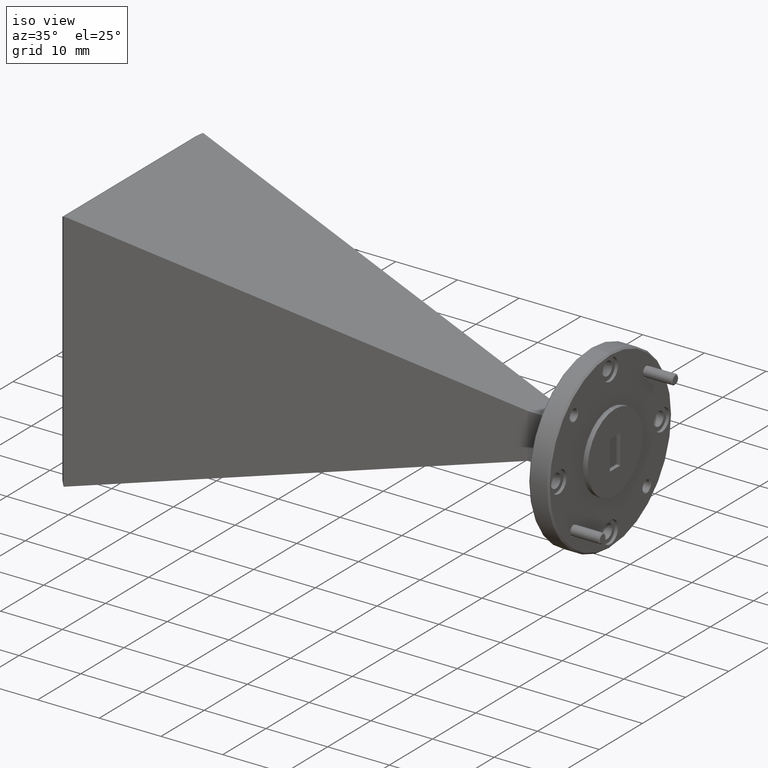
[diagram: clean part render]
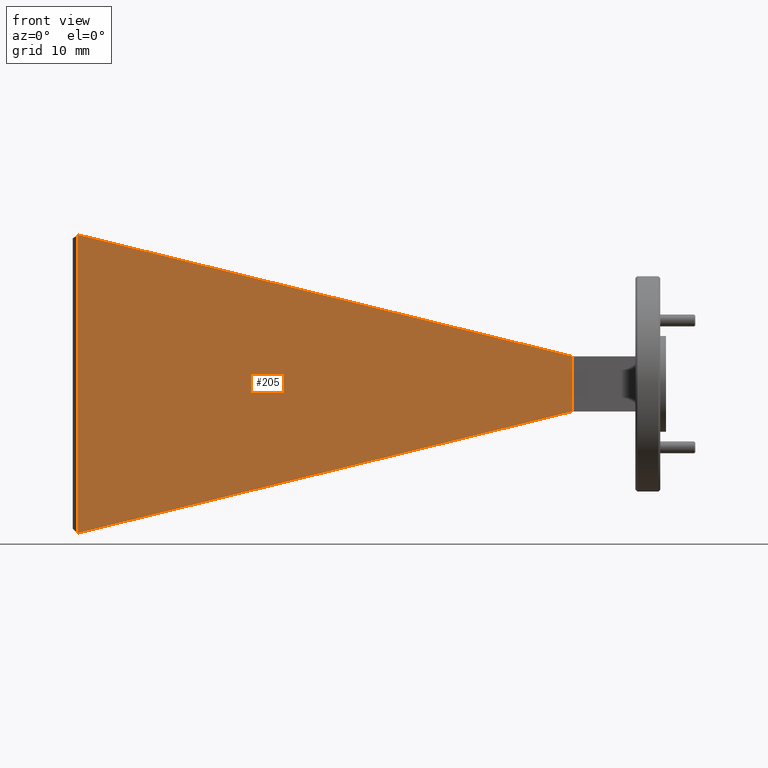
[diagram: tour spotlight — one face highlighted and labeled with its STEP entity id]
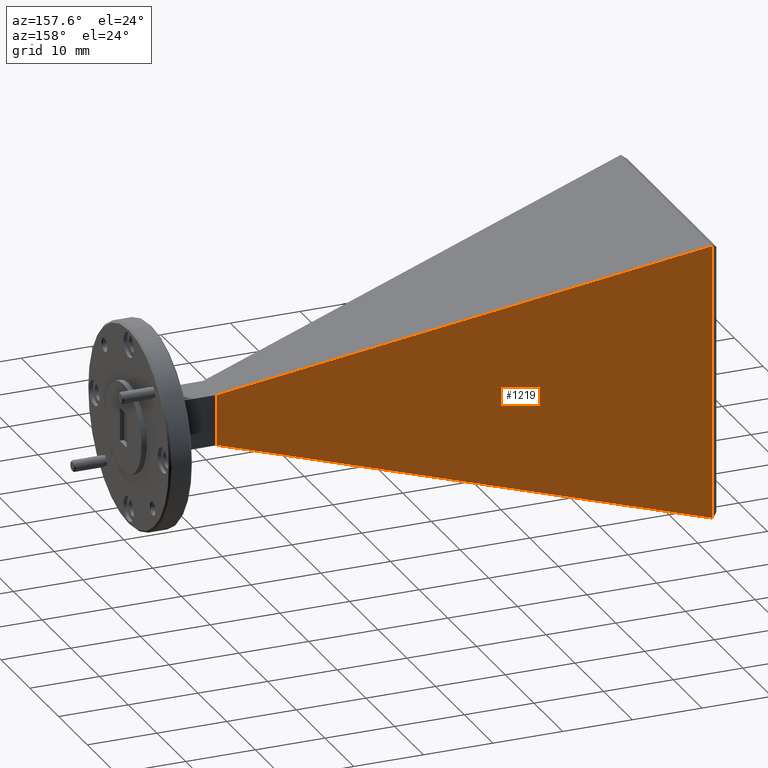
[diagram: tour spotlight — one face highlighted and labeled with its STEP entity id]
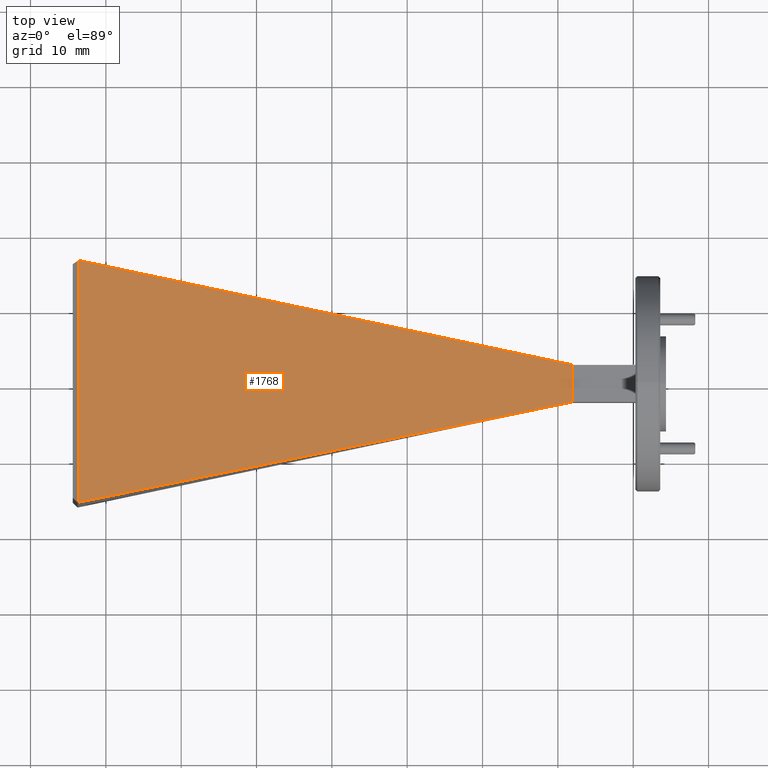
[diagram: tour spotlight — one face highlighted and labeled with its STEP entity id]
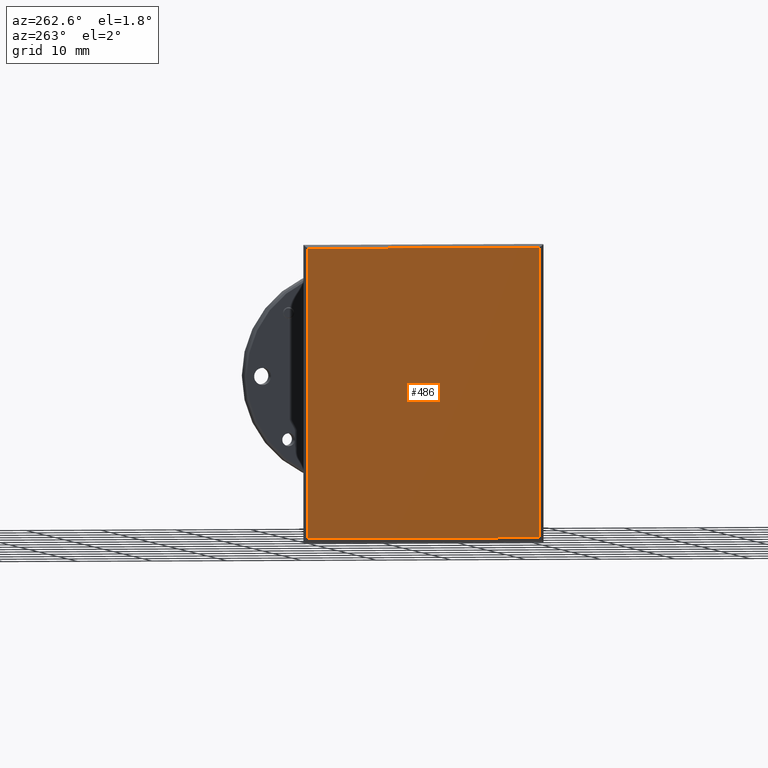
[diagram: tour spotlight — one face highlighted and labeled with its STEP entity id]
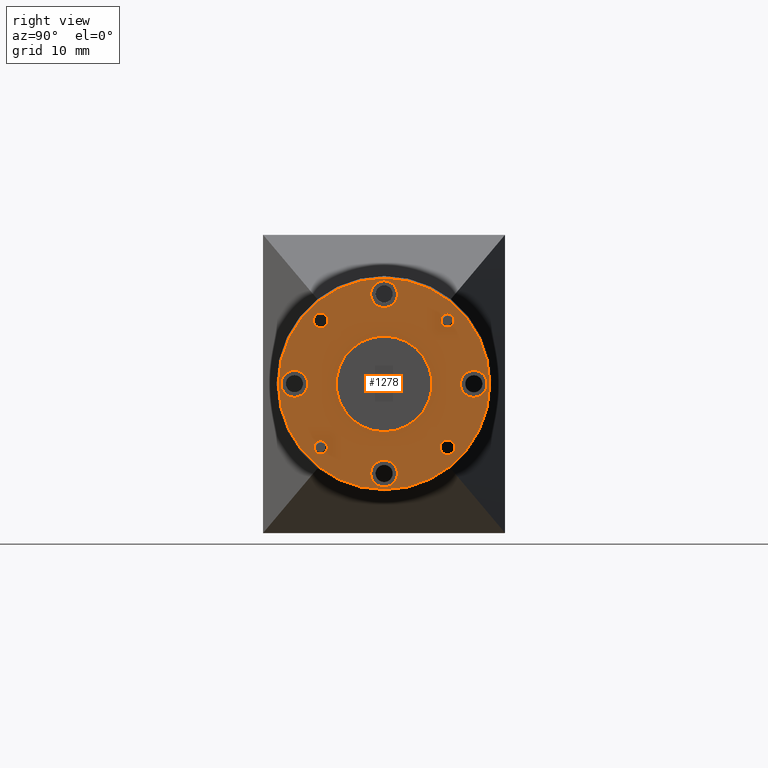
[diagram: tour spotlight — one face highlighted and labeled with its STEP entity id]
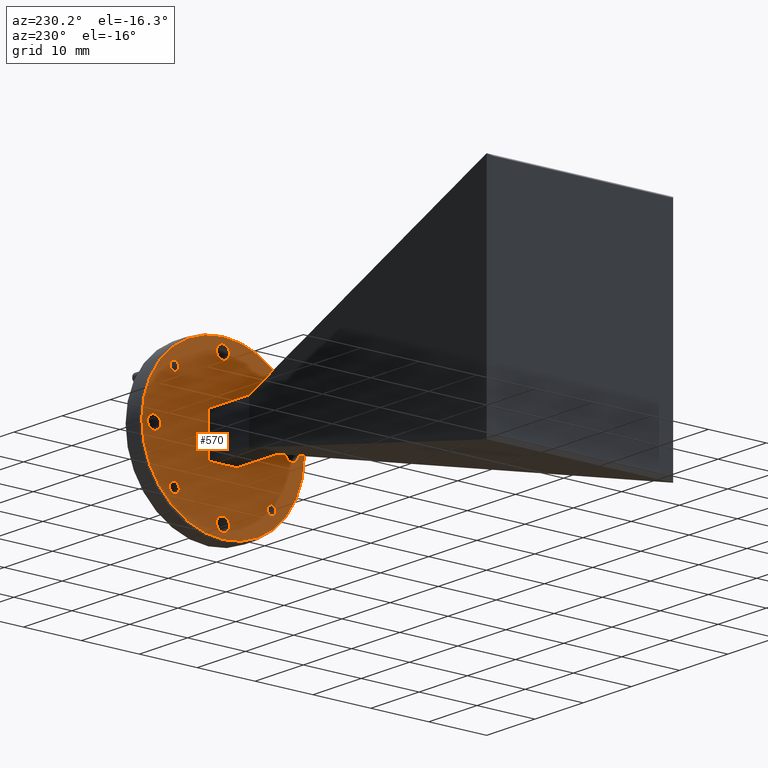
[diagram: tour spotlight — one face highlighted and labeled with its STEP entity id]
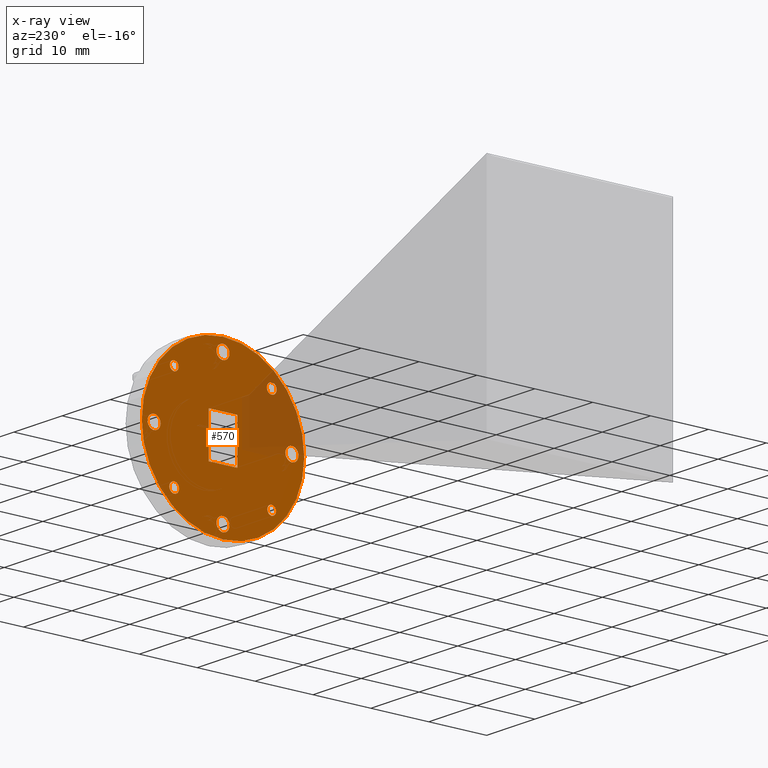
[diagram: x-ray of the same camera — body ghosted, this tour face saturated]
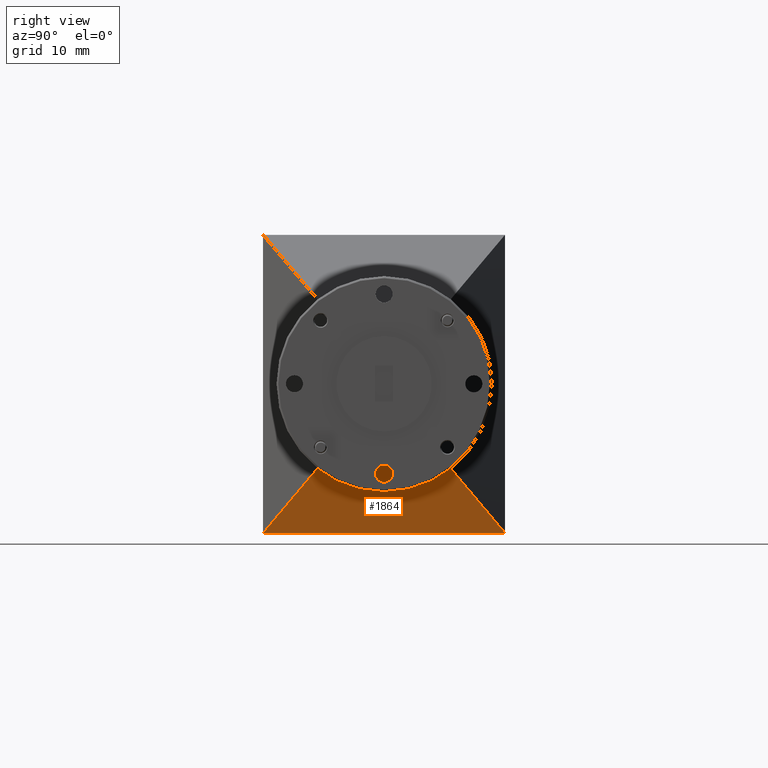
[diagram: tour spotlight — one face highlighted and labeled with its STEP entity id]
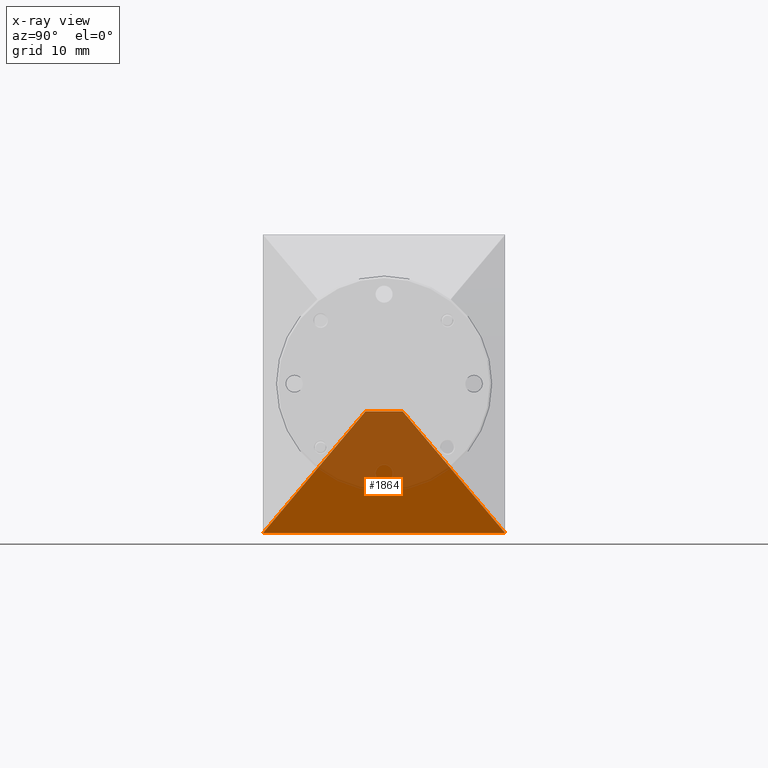
[diagram: x-ray of the same camera — body ghosted, this tour face saturated]
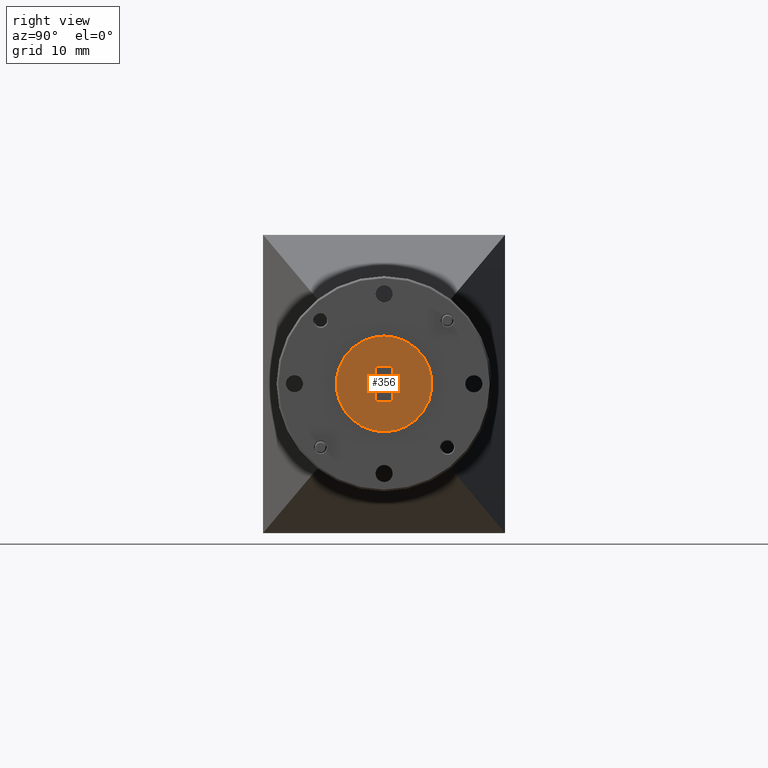
[diagram: tour spotlight — one face highlighted and labeled with its STEP entity id]
A machine part: a face-by-face anatomy tour. The part has 81 B-rep faces; the first image is the clean iso view, then the 8 largest visible faces are spotlighted one at a time (largest first), each with its STEP entity span.

Face 1 — front view, entity #205. In plain terms, the highlighted planar face has unit normal (-0.203, 0.9792, 0).
Definition (entity closure, byte-faithful):
#63 = LINE ( 'NONE', #541, #821 ) ;
#112 = LINE ( 'NONE', #1515, #222 ) ;
#127 = VERTEX_POINT ( 'NONE', #2351 ) ;
#205 = ADVANCED_FACE ( 'NONE', ( #482 ), #1936, .F. ) ;
#218 = DIRECTION ( 'NONE',  ( 0.0000000000000000000, 0.0000000000000000000, 1.000000000000000000 ) ) ;
#222 = VECTOR ( 'NONE', #218, 39.37007874015748100 ) ;
#231 = CARTESIAN_POINT ( 'NONE',  ( 2.379248313192224600, 1.559251477704303400, 2.493166721494955300 ) ) ;
#274 = VECTOR ( 'NONE', #444, 39.37007874015748100 ) ;
#288 = ORIENTED_EDGE ( 'NONE', *, *, #766, .F. ) ;
#444 = DIRECTION ( 'NONE',  ( -0.0000000000000000000, -0.0000000000000000000, -1.000000000000000000 ) ) ;
#448 = EDGE_CURVE ( 'NONE', #1227, #127, #2374, .T. ) ;
#482 = FACE_OUTER_BOUND ( 'NONE', #1030, .T. ) ;
#492 = VECTOR ( 'NONE', #877, 39.37007874015748900 ) ;
#541 = CARTESIAN_POINT ( 'NONE',  ( -0.5373035758004196500, 0.9547094961161730600, 3.272001007360066300 ) ) ;
#606 = ORIENTED_EDGE ( 'NONE', *, *, #2159, .F. ) ;
#708 = CARTESIAN_POINT ( 'NONE',  ( -0.5415859631718247200, 0.9538218441744374900, 1.713279066782165300 ) ) ;
#711 = CARTESIAN_POINT ( 'NONE',  ( -0.5373035758004191000, 0.9547094961161730600, 3.272001007360066300 ) ) ;
#734 = LINE ( 'NONE', #1914, #274 ) ;
#766 = EDGE_CURVE ( 'NONE', #1172, #2340, #865, .T. ) ;
#770 = DIRECTION ( 'NONE',  ( -0.2029653571390851500, 0.9791859189149952900, 0.0000000000000000000 ) ) ;
#821 = VECTOR ( 'NONE', #1273, 39.37007874015748900 ) ;
#865 = LINE ( 'NONE', #979, #1800 ) ;
#877 = DIRECTION ( 'NONE',  ( -0.8423936745229303500, -0.1746111026501528700, -0.5097880539548301800 ) ) ;
#979 = CARTESIAN_POINT ( 'NONE',  ( 2.043564782623166700, 1.489671098379452800, 2.349166721494955600 ) ) ;
#1004 = DIRECTION ( 'NONE',  ( -0.9791859189149951800, -0.2029653571390851200, 0.0000000000000000000 ) ) ;
#1030 = EDGE_LOOP ( 'NONE', ( #288, #606, #1830, #1201, #1787 ) ) ;
#1078 = CARTESIAN_POINT ( 'NONE',  ( -0.5373035758004189900, 0.9547094961161730600, 3.272001007360065800 ) ) ;
#1105 = CARTESIAN_POINT ( 'NONE',  ( 2.043564782623167100, 1.489671098379451900, 2.349166721494955600 ) ) ;
#1159 = EDGE_CURVE ( 'NONE', #1227, #1912, #63, .T. ) ;
#1172 = VERTEX_POINT ( 'NONE', #1105 ) ;
#1201 = ORIENTED_EDGE ( 'NONE', *, *, #448, .T. ) ;
#1227 = VERTEX_POINT ( 'NONE', #711 ) ;
#1273 = DIRECTION ( 'NONE',  ( 0.9519624565406108500, 0.1973224862024790000, -0.2341608801145869400 ) ) ;
#1515 = CARTESIAN_POINT ( 'NONE',  ( -0.5415859631718247200, 0.9538218441744372700, 2.493166721494955300 ) ) ;
#1635 = CARTESIAN_POINT ( 'NONE',  ( 2.043564782623166700, 1.489671098379451900, 2.637166721494955000 ) ) ;
#1787 = ORIENTED_EDGE ( 'NONE', *, *, #2000, .F. ) ;
#1800 = VECTOR ( 'NONE', #2280, 39.37007874015748900 ) ;
#1830 = ORIENTED_EDGE ( 'NONE', *, *, #1159, .F. ) ;
#1912 = VERTEX_POINT ( 'NONE', #1635 ) ;
#1914 = CARTESIAN_POINT ( 'NONE',  ( 2.043564782623166200, 1.489671098379452300, 2.493166721494955300 ) ) ;
#1936 = PLANE ( 'NONE',  #2098 ) ;
#2000 = EDGE_CURVE ( 'NONE', #2340, #127, #112, .T. ) ;
#2098 = AXIS2_PLACEMENT_3D ( 'NONE', #231, #770, #1004 ) ;
#2159 = EDGE_CURVE ( 'NONE', #1912, #1172, #734, .T. ) ;
#2280 = DIRECTION ( 'NONE',  ( -0.9519624565406108500, -0.1973224862024791100, -0.2341608801145869100 ) ) ;
#2340 = VERTEX_POINT ( 'NONE', #708 ) ;
#2351 = CARTESIAN_POINT ( 'NONE',  ( -0.5415859631718247200, 0.9538218441744372700, 3.269409451902832100 ) ) ;
#2374 = LINE ( 'NONE', #1078, #492 ) ;

Face 2 — auxiliary view, entity #1219. In plain terms, the highlighted planar face has unit normal (0.203, 0.9792, 0).
Definition (entity closure, byte-faithful):
#96 = CARTESIAN_POINT ( 'NONE',  ( -0.5370596398093886400, 2.218582137665278800, 2.493166721494955300 ) ) ;
#305 = CARTESIAN_POINT ( 'NONE',  ( 2.043564782623166700, 1.683671098379451200, 2.637166721494955500 ) ) ;
#349 = CARTESIAN_POINT ( 'NONE',  ( 2.043564782623166700, 1.683671098379451400, 2.349166721494955600 ) ) ;
#366 = PLANE ( 'NONE',  #2197 ) ;
#431 = ORIENTED_EDGE ( 'NONE', *, *, #1039, .T. ) ;
#483 = ORIENTED_EDGE ( 'NONE', *, *, #2211, .T. ) ;
#535 = DIRECTION ( 'NONE',  ( -0.9791859189149951800, 0.2029653571390851200, 0.0000000000000000000 ) ) ;
#561 = VECTOR ( 'NONE', #1280, 39.37007874015748900 ) ;
#576 = VERTEX_POINT ( 'NONE', #1873 ) ;
#618 = LINE ( 'NONE', #2027, #561 ) ;
#626 = EDGE_CURVE ( 'NONE', #1060, #576, #638, .T. ) ;
#638 = LINE ( 'NONE', #1904, #1711 ) ;
#858 = CARTESIAN_POINT ( 'NONE',  ( 2.043564782623166700, 1.683671098379450500, 2.493166721494955300 ) ) ;
#883 = VERTEX_POINT ( 'NONE', #305 ) ;
#908 = CARTESIAN_POINT ( 'NONE',  ( -0.5370596398093889800, 2.218582137665279200, 3.271941004713996700 ) ) ;
#1039 = EDGE_CURVE ( 'NONE', #883, #1060, #2241, .T. ) ;
#1053 = ORIENTED_EDGE ( 'NONE', *, *, #626, .T. ) ;
#1060 = VERTEX_POINT ( 'NONE', #349 ) ;
#1070 = LINE ( 'NONE', #96, #2043 ) ;
#1185 = VECTOR ( 'NONE', #2377, 39.37007874015748100 ) ;
#1219 = ADVANCED_FACE ( 'NONE', ( #1776 ), #366, .T. ) ;
#1263 = EDGE_LOOP ( 'NONE', ( #1053, #483, #1889, #431 ) ) ;
#1280 = DIRECTION ( 'NONE',  ( -0.9519624565406108500, 0.1973224862024788900, 0.2341608801145870500 ) ) ;
#1343 = DIRECTION ( 'NONE',  ( 0.0000000000000000000, -0.0000000000000000000, 1.000000000000000000 ) ) ;
#1711 = VECTOR ( 'NONE', #2269, 39.37007874015748900 ) ;
#1776 = FACE_OUTER_BOUND ( 'NONE', #1263, .T. ) ;
#1873 = CARTESIAN_POINT ( 'NONE',  ( -0.5370596398093885300, 2.218582137665278800, 1.714392438275913900 ) ) ;
#1883 = VERTEX_POINT ( 'NONE', #908 ) ;
#1889 = ORIENTED_EDGE ( 'NONE', *, *, #2370, .F. ) ;
#1904 = CARTESIAN_POINT ( 'NONE',  ( 2.043564782623166700, 1.683671098379451200, 2.349166721494957000 ) ) ;
#2027 = CARTESIAN_POINT ( 'NONE',  ( 2.043564782623166700, 1.683671098379451200, 2.637166721494953700 ) ) ;
#2043 = VECTOR ( 'NONE', #1343, 39.37007874015748100 ) ;
#2182 = CARTESIAN_POINT ( 'NONE',  ( 2.379248313192224600, 1.614090719054599900, 2.493166721494955300 ) ) ;
#2197 = AXIS2_PLACEMENT_3D ( 'NONE', #2182, #2373, #535 ) ;
#2211 = EDGE_CURVE ( 'NONE', #576, #1883, #1070, .T. ) ;
#2241 = LINE ( 'NONE', #858, #1185 ) ;
#2269 = DIRECTION ( 'NONE',  ( -0.9519624565406108500, 0.1973224862024787500, -0.2341608801145871300 ) ) ;
#2370 = EDGE_CURVE ( 'NONE', #883, #1883, #618, .T. ) ;
#2373 = DIRECTION ( 'NONE',  ( 0.2029653571390851500, 0.9791859189149952900, 0.0000000000000000000 ) ) ;
#2377 = DIRECTION ( 'NONE',  ( -0.0000000000000000000, 0.0000000000000000000, -1.000000000000000000 ) ) ;

Face 3 — top view, entity #1768. In plain terms, the highlighted planar face has unit normal (0.2389, 0, 0.9711).
Definition (entity closure, byte-faithful):
#11 = CARTESIAN_POINT ( 'NONE',  ( -0.5370596398093886400, 2.218582137665279200, 3.271941004713996700 ) ) ;
#63 = LINE ( 'NONE', #541, #821 ) ;
#75 = VERTEX_POINT ( 'NONE', #2183 ) ;
#194 = EDGE_CURVE ( 'NONE', #1912, #883, #378, .T. ) ;
#240 = ORIENTED_EDGE ( 'NONE', *, *, #1281, .T. ) ;
#261 = EDGE_CURVE ( 'NONE', #75, #1227, #1403, .T. ) ;
#305 = CARTESIAN_POINT ( 'NONE',  ( 2.043564782623166700, 1.683671098379451200, 2.637166721494955500 ) ) ;
#307 = DIRECTION ( 'NONE',  ( 0.2388571378296562900, 0.0000000000000000000, 0.9710547192140227500 ) ) ;
#365 = DIRECTION ( 'NONE',  ( -0.0000000000000000000, 1.000000000000000000, 0.0000000000000000000 ) ) ;
#378 = LINE ( 'NONE', #2052, #1231 ) ;
#541 = CARTESIAN_POINT ( 'NONE',  ( -0.5373035758004196500, 0.9547094961161730600, 3.272001007360066300 ) ) ;
#561 = VECTOR ( 'NONE', #1280, 39.37007874015748900 ) ;
#618 = LINE ( 'NONE', #2027, #561 ) ;
#628 = EDGE_LOOP ( 'NONE', ( #240, #1737, #2034, #1913, #1327 ) ) ;
#711 = CARTESIAN_POINT ( 'NONE',  ( -0.5373035758004191000, 0.9547094961161730600, 3.272001007360066300 ) ) ;
#749 = VECTOR ( 'NONE', #1022, 39.37007874015748100 ) ;
#821 = VECTOR ( 'NONE', #1273, 39.37007874015748900 ) ;
#847 = CARTESIAN_POINT ( 'NONE',  ( -0.5373035758004188800, 1.586671098379451600, 3.272001007360065800 ) ) ;
#883 = VERTEX_POINT ( 'NONE', #305 ) ;
#900 = FACE_OUTER_BOUND ( 'NONE', #628, .T. ) ;
#908 = CARTESIAN_POINT ( 'NONE',  ( -0.5370596398093889800, 2.218582137665279200, 3.271941004713996700 ) ) ;
#981 = LINE ( 'NONE', #11, #1658 ) ;
#1022 = DIRECTION ( 'NONE',  ( 0.0000000000000000000, -1.000000000000000000, -0.0000000000000000000 ) ) ;
#1051 = PLANE ( 'NONE',  #1899 ) ;
#1159 = EDGE_CURVE ( 'NONE', #1227, #1912, #63, .T. ) ;
#1227 = VERTEX_POINT ( 'NONE', #711 ) ;
#1231 = VECTOR ( 'NONE', #365, 39.37007874015748100 ) ;
#1273 = DIRECTION ( 'NONE',  ( 0.9519624565406108500, 0.1973224862024790000, -0.2341608801145869400 ) ) ;
#1280 = DIRECTION ( 'NONE',  ( -0.9519624565406108500, 0.1973224862024788900, 0.2341608801145870500 ) ) ;
#1281 = EDGE_CURVE ( 'NONE', #1883, #75, #981, .T. ) ;
#1327 = ORIENTED_EDGE ( 'NONE', *, *, #2370, .T. ) ;
#1403 = LINE ( 'NONE', #847, #749 ) ;
#1635 = CARTESIAN_POINT ( 'NONE',  ( 2.043564782623166700, 1.489671098379451900, 2.637166721494955000 ) ) ;
#1658 = VECTOR ( 'NONE', #2357, 39.37007874015748900 ) ;
#1737 = ORIENTED_EDGE ( 'NONE', *, *, #261, .T. ) ;
#1768 = ADVANCED_FACE ( 'NONE', ( #900 ), #1051, .T. ) ;
#1783 = DIRECTION ( 'NONE',  ( 0.9710547192140226400, 0.0000000000000000000, -0.2388571378296562600 ) ) ;
#1883 = VERTEX_POINT ( 'NONE', #908 ) ;
#1899 = AXIS2_PLACEMENT_3D ( 'NONE', #2146, #307, #1783 ) ;
#1912 = VERTEX_POINT ( 'NONE', #1635 ) ;
#1913 = ORIENTED_EDGE ( 'NONE', *, *, #194, .T. ) ;
#2027 = CARTESIAN_POINT ( 'NONE',  ( 2.043564782623166700, 1.683671098379451200, 2.637166721494953700 ) ) ;
#2034 = ORIENTED_EDGE ( 'NONE', *, *, #1159, .T. ) ;
#2052 = CARTESIAN_POINT ( 'NONE',  ( 2.043564782623166200, 1.586671098379451600, 2.637166721494953700 ) ) ;
#2146 = CARTESIAN_POINT ( 'NONE',  ( 2.388137223497415200, 1.586671098379451600, 2.552409822245425900 ) ) ;
#2183 = CARTESIAN_POINT ( 'NONE',  ( -0.5373035758004188800, 2.218421965159585800, 3.272001007360065800 ) ) ;
#2357 = DIRECTION ( 'NONE',  ( -0.8187785566641102600, -0.5376238761463231200, 0.2014007024427653700 ) ) ;
#2370 = EDGE_CURVE ( 'NONE', #883, #1883, #618, .T. ) ;

Face 4 — auxiliary view, entity #486. In plain terms, the highlighted planar face has unit normal (-1, 0, 0).
Definition (entity closure, byte-faithful):
#21 = EDGE_LOOP ( 'NONE', ( #1859, #1793, #428, #923 ) ) ;
#109 = LINE ( 'NONE', #623, #761 ) ;
#302 = LINE ( 'NONE', #1975, #360 ) ;
#308 = EDGE_CURVE ( 'NONE', #718, #1320, #2345, .T. ) ;
#331 = PLANE ( 'NONE',  #1341 ) ;
#360 = VECTOR ( 'NONE', #502, 39.37007874015748100 ) ;
#409 = EDGE_CURVE ( 'NONE', #1320, #664, #956, .T. ) ;
#413 = CARTESIAN_POINT ( 'NONE',  ( -0.5664352173768390000, 0.9786710983794516500, 3.254371526848874200 ) ) ;
#428 = ORIENTED_EDGE ( 'NONE', *, *, #1803, .T. ) ;
#486 = ADVANCED_FACE ( 'NONE', ( #1687 ), #331, .T. ) ;
#502 = DIRECTION ( 'NONE',  ( -0.0000000000000000000, -1.000000000000000000, 0.0000000000000000000 ) ) ;
#623 = CARTESIAN_POINT ( 'NONE',  ( -0.5664352173768390000, 0.9786710983794515400, 2.493166721494955300 ) ) ;
#664 = VERTEX_POINT ( 'NONE', #2271 ) ;
#718 = VERTEX_POINT ( 'NONE', #413 ) ;
#761 = VECTOR ( 'NONE', #1544, 39.37007874015748100 ) ;
#885 = DIRECTION ( 'NONE',  ( -0.0000000000000000000, -0.0000000000000000000, -1.000000000000000000 ) ) ;
#923 = ORIENTED_EDGE ( 'NONE', *, *, #2244, .F. ) ;
#956 = LINE ( 'NONE', #2011, #1241 ) ;
#1068 = VECTOR ( 'NONE', #1962, 39.37007874015748100 ) ;
#1241 = VECTOR ( 'NONE', #885, 39.37007874015748100 ) ;
#1320 = VERTEX_POINT ( 'NONE', #1875 ) ;
#1341 = AXIS2_PLACEMENT_3D ( 'NONE', #1790, #1617, #2356 ) ;
#1429 = VERTEX_POINT ( 'NONE', #2053 ) ;
#1544 = DIRECTION ( 'NONE',  ( -0.0000000000000000000, -0.0000000000000000000, -1.000000000000000000 ) ) ;
#1580 = CARTESIAN_POINT ( 'NONE',  ( -0.5664352173768390000, 1.586671098379451600, 3.254371526848874200 ) ) ;
#1617 = DIRECTION ( 'NONE',  ( -1.000000000000000000, 0.0000000000000000000, 0.0000000000000000000 ) ) ;
#1687 = FACE_OUTER_BOUND ( 'NONE', #21, .T. ) ;
#1790 = CARTESIAN_POINT ( 'NONE',  ( -0.5664352173768390000, 1.586671098379451600, 2.493166721494955300 ) ) ;
#1793 = ORIENTED_EDGE ( 'NONE', *, *, #409, .T. ) ;
#1803 = EDGE_CURVE ( 'NONE', #664, #1429, #302, .T. ) ;
#1859 = ORIENTED_EDGE ( 'NONE', *, *, #308, .T. ) ;
#1875 = CARTESIAN_POINT ( 'NONE',  ( -0.5664352173768390000, 2.199293635606550400, 3.254371526848874200 ) ) ;
#1962 = DIRECTION ( 'NONE',  ( 0.0000000000000000000, 1.000000000000000000, -0.0000000000000000000 ) ) ;
#1975 = CARTESIAN_POINT ( 'NONE',  ( -0.5664352173768390000, 1.586671098379451600, 1.737166721494954900 ) ) ;
#2011 = CARTESIAN_POINT ( 'NONE',  ( -0.5664352173768390000, 2.199293635606550400, 2.493166721494955300 ) ) ;
#2053 = CARTESIAN_POINT ( 'NONE',  ( -0.5664352173768390000, 0.9786710983794517600, 1.737166721494954700 ) ) ;
#2244 = EDGE_CURVE ( 'NONE', #718, #1429, #109, .T. ) ;
#2271 = CARTESIAN_POINT ( 'NONE',  ( -0.5664352173768390000, 2.199293635606550400, 1.737166721494955100 ) ) ;
#2345 = LINE ( 'NONE', #1580, #1068 ) ;
#2356 = DIRECTION ( 'NONE',  ( 0.0000000000000000000, 0.0000000000000000000, 1.000000000000000000 ) ) ;

Face 5 — right view, entity #1278. In plain terms, the highlighted planar face has unit normal (1, 0, 0).
Definition (entity closure, byte-faithful):
#1 = FACE_BOUND ( 'NONE', #2226, .T. ) ;
#38 = EDGE_CURVE ( 'NONE', #407, #976, #1123, .T. ) ;
#39 = CARTESIAN_POINT ( 'NONE',  ( 2.503564782623160800, 1.117921098379451600, 2.423166721494955500 ) ) ;
#46 = VERTEX_POINT ( 'NONE', #1199 ) ;
#66 = CARTESIAN_POINT ( 'NONE',  ( 2.503564782623160800, 1.586671098379451600, 1.954416721494955300 ) ) ;
#71 = DIRECTION ( 'NONE',  ( 0.0000000000000000000, 0.0000000000000000000, -1.000000000000000000 ) ) ;
#99 = ORIENTED_EDGE ( 'NONE', *, *, #343, .T. ) ;
#108 = AXIS2_PLACEMENT_3D ( 'NONE', #1845, #1427, #512 ) ;
#117 = EDGE_CURVE ( 'NONE', #339, #2142, #785, .T. ) ;
#133 = CARTESIAN_POINT ( 'NONE',  ( 2.503564782621089600, 1.918127402060645600, 2.123210417813743400 ) ) ;
#140 = CIRCLE ( 'NONE', #777, 0.07000000000000007600 ) ;
#150 = ORIENTED_EDGE ( 'NONE', *, *, #1667, .T. ) ;
#172 = DIRECTION ( 'NONE',  ( 1.000000000000000000, 0.0000000000000000000, 0.0000000000000000000 ) ) ;
#184 = EDGE_CURVE ( 'NONE', #46, #839, #1970, .T. ) ;
#188 = CIRCLE ( 'NONE', #1868, 0.03474999999983740400 ) ;
#192 = FACE_BOUND ( 'NONE', #2116, .T. ) ;
#198 = CARTESIAN_POINT ( 'NONE',  ( 2.503564782623327800, 1.255214794698257700, 2.126960417813923900 ) ) ;
#203 = DIRECTION ( 'NONE',  ( 0.0000000000000000000, 0.0000000000000000000, 1.000000000000000000 ) ) ;
#216 = EDGE_CURVE ( 'NONE', #976, #407, #1858, .T. ) ;
#242 = CARTESIAN_POINT ( 'NONE',  ( 2.503564782623160800, 1.586671098379451600, 2.094416721494955600 ) ) ;
#243 = ORIENTED_EDGE ( 'NONE', *, *, #2321, .T. ) ;
#248 = CARTESIAN_POINT ( 'NONE',  ( 2.503564782621089600, 1.918127402060645600, 2.200210417813779800 ) ) ;
#262 = VERTEX_POINT ( 'NONE', #1799 ) ;
#293 = ORIENTED_EDGE ( 'NONE', *, *, #117, .T. ) ;
#301 = FACE_OUTER_BOUND ( 'NONE', #743, .T. ) ;
#312 = AXIS2_PLACEMENT_3D ( 'NONE', #1178, #966, #1548 ) ;
#337 = EDGE_LOOP ( 'NONE', ( #1972, #916 ) ) ;
#339 = VERTEX_POINT ( 'NONE', #133 ) ;
#343 = EDGE_CURVE ( 'NONE', #1532, #1552, #140, .T. ) ;
#355 = DIRECTION ( 'NONE',  ( -1.000000000000000000, -0.0000000000000000000, -0.0000000000000000000 ) ) ;
#369 = DIRECTION ( 'NONE',  ( 0.0000000000000000000, 0.0000000000000000000, -1.000000000000000000 ) ) ;
#397 = AXIS2_PLACEMENT_3D ( 'NONE', #884, #1077, #2044 ) ;
#404 = VERTEX_POINT ( 'NONE', #863 ) ;
#407 = VERTEX_POINT ( 'NONE', #1052 ) ;
#440 = CIRCLE ( 'NONE', #1095, 0.03850000000001817900 ) ;
#452 = ORIENTED_EDGE ( 'NONE', *, *, #2361, .T. ) ;
#478 = ORIENTED_EDGE ( 'NONE', *, *, #184, .T. ) ;
#499 = DIRECTION ( 'NONE',  ( -1.000000000000000000, -0.0000000000000000000, 0.0000000000000000000 ) ) ;
#506 = CARTESIAN_POINT ( 'NONE',  ( 2.503564782623160800, 1.586671098379451600, 2.891916721494955000 ) ) ;
#512 = DIRECTION ( 'NONE',  ( 0.0000000000000000000, 0.0000000000000000000, -1.000000000000000000 ) ) ;
#513 = ORIENTED_EDGE ( 'NONE', *, *, #1250, .T. ) ;
#519 = ORIENTED_EDGE ( 'NONE', *, *, #554, .T. ) ;
#554 = EDGE_CURVE ( 'NONE', #404, #1727, #1801, .T. ) ;
#562 = FACE_BOUND ( 'NONE', #775, .T. ) ;
#563 = CARTESIAN_POINT ( 'NONE',  ( 2.503564782623160800, 1.117921098379451600, 2.493166721494955300 ) ) ;
#580 = VERTEX_POINT ( 'NONE', #1283 ) ;
#608 = EDGE_CURVE ( 'NONE', #2055, #1944, #2262, .T. ) ;
#612 = DIRECTION ( 'NONE',  ( -1.000000000000000000, -0.0000000000000000000, -0.0000000000000000000 ) ) ;
#640 = DIRECTION ( 'NONE',  ( 0.0000000000000000000, 0.0000000000000000000, -1.000000000000000000 ) ) ;
#648 = CIRCLE ( 'NONE', #1340, 0.5525000000000018800 ) ;
#671 = CIRCLE ( 'NONE', #1802, 0.07000000000000007600 ) ;
#687 = ORIENTED_EDGE ( 'NONE', *, *, #608, .T. ) ;
#689 = DIRECTION ( 'NONE',  ( 0.0000000000000000000, 0.0000000000000000000, -1.000000000000000000 ) ) ;
#702 = CIRCLE ( 'NONE', #397, 0.2499999999999998100 ) ;
#706 = CARTESIAN_POINT ( 'NONE',  ( 2.503564782623160800, 1.586671098379451600, 2.493166721494955300 ) ) ;
#743 = EDGE_LOOP ( 'NONE', ( #1585, #1228 ) ) ;
#750 = ORIENTED_EDGE ( 'NONE', *, *, #1877, .T. ) ;
#765 = AXIS2_PLACEMENT_3D ( 'NONE', #1364, #1571, #1952 ) ;
#767 = CARTESIAN_POINT ( 'NONE',  ( 2.503564782625565600, 1.255214794698257500, 2.824623025176149500 ) ) ;
#775 = EDGE_LOOP ( 'NONE', ( #1437, #1881 ) ) ;
#777 = AXIS2_PLACEMENT_3D ( 'NONE', #852, #1017, #1033 ) ;
#784 = VERTEX_POINT ( 'NONE', #1569 ) ;
#785 = CIRCLE ( 'NONE', #2337, 0.03850000000001817900 ) ;
#786 = EDGE_LOOP ( 'NONE', ( #1380, #99 ) ) ;
#795 = CARTESIAN_POINT ( 'NONE',  ( 2.503564782623327800, 1.918127402060645600, 2.824623025176149500 ) ) ;
#798 = EDGE_CURVE ( 'NONE', #2199, #1323, #188, .T. ) ;
#804 = DIRECTION ( 'NONE',  ( 0.0000000000000000000, 0.0000000000000000000, -1.000000000000000000 ) ) ;
#818 = FACE_BOUND ( 'NONE', #2140, .T. ) ;
#823 = CARTESIAN_POINT ( 'NONE',  ( 2.503564782623327800, 1.255214794698257700, 2.161710417813761600 ) ) ;
#839 = VERTEX_POINT ( 'NONE', #1758 ) ;
#849 = AXIS2_PLACEMENT_3D ( 'NONE', #1291, #1461, #203 ) ;
#852 = CARTESIAN_POINT ( 'NONE',  ( 2.503564782623160800, 1.586671098379451600, 2.024416721494955300 ) ) ;
#863 = CARTESIAN_POINT ( 'NONE',  ( 2.503564782623160800, 2.055421098379451600, 2.563166721494955600 ) ) ;
#884 = CARTESIAN_POINT ( 'NONE',  ( 2.503564782623160800, 1.586671098379451600, 2.493166721494955300 ) ) ;
#893 = AXIS2_PLACEMENT_3D ( 'NONE', #1160, #612, #71 ) ;
#912 = DIRECTION ( 'NONE',  ( 0.0000000000000000000, 0.0000000000000000000, -1.000000000000000000 ) ) ;
#916 = ORIENTED_EDGE ( 'NONE', *, *, #38, .T. ) ;
#928 = DIRECTION ( 'NONE',  ( 0.0000000000000000000, 0.0000000000000000000, -1.000000000000000000 ) ) ;
#932 = CIRCLE ( 'NONE', #1394, 0.03474999999908532500 ) ;
#934 = CARTESIAN_POINT ( 'NONE',  ( 2.503564782625565600, 1.255214794698257500, 2.786123025174223500 ) ) ;
#948 = EDGE_LOOP ( 'NONE', ( #750, #478 ) ) ;
#954 = ORIENTED_EDGE ( 'NONE', *, *, #1977, .T. ) ;
#966 = DIRECTION ( 'NONE',  ( 1.000000000000000000, -0.0000000000000000000, -0.0000000000000000000 ) ) ;
#970 = AXIS2_PLACEMENT_3D ( 'NONE', #2051, #355, #2045 ) ;
#976 = VERTEX_POINT ( 'NONE', #506 ) ;
#995 = AXIS2_PLACEMENT_3D ( 'NONE', #767, #2073, #2260 ) ;
#1017 = DIRECTION ( 'NONE',  ( -1.000000000000000000, -0.0000000000000000000, -0.0000000000000000000 ) ) ;
#1033 = DIRECTION ( 'NONE',  ( 0.0000000000000000000, 0.0000000000000000000, -1.000000000000000000 ) ) ;
#1045 = CARTESIAN_POINT ( 'NONE',  ( 2.503564782623160800, 2.055421098379451600, 2.423166721494955500 ) ) ;
#1052 = CARTESIAN_POINT ( 'NONE',  ( 2.503564782623160800, 1.586671098379451600, 3.031916721494955200 ) ) ;
#1067 = DIRECTION ( 'NONE',  ( 0.0000000000000000000, 0.0000000000000000000, -1.000000000000000000 ) ) ;
#1077 = DIRECTION ( 'NONE',  ( -1.000000000000000000, -0.0000000000000000000, -0.0000000000000000000 ) ) ;
#1095 = AXIS2_PLACEMENT_3D ( 'NONE', #2248, #1338, #369 ) ;
#1116 = DIRECTION ( 'NONE',  ( 0.0000000000000000000, 0.0000000000000000000, -1.000000000000000000 ) ) ;
#1123 = CIRCLE ( 'NONE', #1678, 0.07000000000000007600 ) ;
#1141 = AXIS2_PLACEMENT_3D ( 'NONE', #2300, #1194, #1116 ) ;
#1160 = CARTESIAN_POINT ( 'NONE',  ( 2.503564782625565600, 1.255214794698257500, 2.824623025176149500 ) ) ;
#1178 = CARTESIAN_POINT ( 'NONE',  ( 2.503564782623160800, 1.586671098379451600, 2.493166721494955300 ) ) ;
#1179 = DIRECTION ( 'NONE',  ( 0.0000000000000000000, 0.0000000000000000000, -1.000000000000000000 ) ) ;
#1194 = DIRECTION ( 'NONE',  ( -1.000000000000000000, -0.0000000000000000000, -0.0000000000000000000 ) ) ;
#1199 = CARTESIAN_POINT ( 'NONE',  ( 2.503564782623160800, 1.586671098379451600, 2.243166721494955300 ) ) ;
#1215 = DIRECTION ( 'NONE',  ( 0.0000000000000000000, 0.0000000000000000000, 1.000000000000000000 ) ) ;
#1220 = CARTESIAN_POINT ( 'NONE',  ( 2.503564782623160800, 1.586671098379451600, 2.493166721494955300 ) ) ;
#1226 = AXIS2_PLACEMENT_3D ( 'NONE', #706, #172, #1067 ) ;
#1228 = ORIENTED_EDGE ( 'NONE', *, *, #1841, .T. ) ;
#1240 = EDGE_LOOP ( 'NONE', ( #687, #452 ) ) ;
#1250 = EDGE_CURVE ( 'NONE', #1727, #404, #1838, .T. ) ;
#1278 = ADVANCED_FACE ( 'NONE', ( #301, #2206, #1484, #1361, #1693, #1, #192, #562, #818, #1804 ), #1659, .T. ) ;
#1283 = CARTESIAN_POINT ( 'NONE',  ( 2.503564782623160800, 1.586671098379451600, 3.045666721494957300 ) ) ;
#1291 = CARTESIAN_POINT ( 'NONE',  ( 2.503564782623160800, 1.586671098379451600, 2.493166721494955300 ) ) ;
#1298 = ORIENTED_EDGE ( 'NONE', *, *, #798, .T. ) ;
#1308 = CARTESIAN_POINT ( 'NONE',  ( 2.503564782623327800, 1.918127402060645600, 2.824623025176149500 ) ) ;
#1323 = VERTEX_POINT ( 'NONE', #198 ) ;
#1338 = DIRECTION ( 'NONE',  ( -1.000000000000000000, -0.0000000000000000000, 0.0000000000000000000 ) ) ;
#1340 = AXIS2_PLACEMENT_3D ( 'NONE', #1220, #1616, #1215 ) ;
#1361 = FACE_BOUND ( 'NONE', #337, .T. ) ;
#1364 = CARTESIAN_POINT ( 'NONE',  ( 2.503564782623327800, 1.255214794698257700, 2.161710417813761600 ) ) ;
#1365 = EDGE_CURVE ( 'NONE', #262, #784, #1920, .T. ) ;
#1376 = VERTEX_POINT ( 'NONE', #1698 ) ;
#1380 = ORIENTED_EDGE ( 'NONE', *, *, #1911, .T. ) ;
#1390 = DIRECTION ( 'NONE',  ( -1.000000000000000000, -0.0000000000000000000, -0.0000000000000000000 ) ) ;
#1394 = AXIS2_PLACEMENT_3D ( 'NONE', #795, #2096, #804 ) ;
#1427 = DIRECTION ( 'NONE',  ( -1.000000000000000000, -0.0000000000000000000, -0.0000000000000000000 ) ) ;
#1437 = ORIENTED_EDGE ( 'NONE', *, *, #1365, .T. ) ;
#1449 = CIRCLE ( 'NONE', #995, 0.03850000000192610500 ) ;
#1452 = DIRECTION ( 'NONE',  ( -1.000000000000000000, -0.0000000000000000000, -0.0000000000000000000 ) ) ;
#1459 = DIRECTION ( 'NONE',  ( -1.000000000000000000, -0.0000000000000000000, -0.0000000000000000000 ) ) ;
#1461 = DIRECTION ( 'NONE',  ( -1.000000000000000000, -0.0000000000000000000, -0.0000000000000000000 ) ) ;
#1481 = CARTESIAN_POINT ( 'NONE',  ( 2.503564782623160800, 1.117921098379451600, 2.563166721494955600 ) ) ;
#1484 = FACE_BOUND ( 'NONE', #786, .T. ) ;
#1520 = EDGE_CURVE ( 'NONE', #784, #262, #932, .T. ) ;
#1532 = VERTEX_POINT ( 'NONE', #242 ) ;
#1548 = DIRECTION ( 'NONE',  ( 0.0000000000000000000, 0.0000000000000000000, 1.000000000000000000 ) ) ;
#1552 = VERTEX_POINT ( 'NONE', #66 ) ;
#1566 = CARTESIAN_POINT ( 'NONE',  ( 2.503564782623160800, 1.586671098379451600, 2.961916721494955300 ) ) ;
#1569 = CARTESIAN_POINT ( 'NONE',  ( 2.503564782623327800, 1.918127402060645600, 2.859373025175235000 ) ) ;
#1571 = DIRECTION ( 'NONE',  ( -1.000000000000000000, -0.0000000000000000000, -0.0000000000000000000 ) ) ;
#1585 = ORIENTED_EDGE ( 'NONE', *, *, #2204, .T. ) ;
#1616 = DIRECTION ( 'NONE',  ( 1.000000000000000000, -0.0000000000000000000, -0.0000000000000000000 ) ) ;
#1621 = ORIENTED_EDGE ( 'NONE', *, *, #2131, .T. ) ;
#1626 = CIRCLE ( 'NONE', #893, 0.03850000000192610500 ) ;
#1629 = CIRCLE ( 'NONE', #2332, 0.07000000000000007600 ) ;
#1641 = VERTEX_POINT ( 'NONE', #2320 ) ;
#1643 = CARTESIAN_POINT ( 'NONE',  ( 2.503564782623160800, 1.586671098379451600, 2.024416721494955300 ) ) ;
#1659 = PLANE ( 'NONE',  #1226 ) ;
#1667 = EDGE_CURVE ( 'NONE', #1323, #2199, #1897, .T. ) ;
#1671 = DIRECTION ( 'NONE',  ( -1.000000000000000000, -0.0000000000000000000, -0.0000000000000000000 ) ) ;
#1678 = AXIS2_PLACEMENT_3D ( 'NONE', #1566, #1390, #640 ) ;
#1693 = FACE_BOUND ( 'NONE', #1932, .T. ) ;
#1698 = CARTESIAN_POINT ( 'NONE',  ( 2.503564782623160800, 1.586671098379451600, 1.940666721494954000 ) ) ;
#1727 = VERTEX_POINT ( 'NONE', #1045 ) ;
#1758 = CARTESIAN_POINT ( 'NONE',  ( 2.503564782623160800, 1.586671098379451600, 2.743166721494955300 ) ) ;
#1799 = CARTESIAN_POINT ( 'NONE',  ( 2.503564782623327800, 1.918127402060645600, 2.789873025177064500 ) ) ;
#1801 = CIRCLE ( 'NONE', #970, 0.07000000000000007600 ) ;
#1802 = AXIS2_PLACEMENT_3D ( 'NONE', #563, #1452, #928 ) ;
#1804 = FACE_BOUND ( 'NONE', #948, .T. ) ;
#1838 = CIRCLE ( 'NONE', #108, 0.07000000000000007600 ) ;
#1841 = EDGE_CURVE ( 'NONE', #1376, #580, #648, .T. ) ;
#1845 = CARTESIAN_POINT ( 'NONE',  ( 2.503564782623160800, 2.055421098379451600, 2.493166721494955300 ) ) ;
#1853 = DIRECTION ( 'NONE',  ( 0.0000000000000000000, 0.0000000000000000000, -1.000000000000000000 ) ) ;
#1858 = CIRCLE ( 'NONE', #1141, 0.07000000000000007600 ) ;
#1868 = AXIS2_PLACEMENT_3D ( 'NONE', #823, #2299, #1179 ) ;
#1877 = EDGE_CURVE ( 'NONE', #839, #46, #702, .T. ) ;
#1879 = DIRECTION ( 'NONE',  ( -1.000000000000000000, -0.0000000000000000000, -0.0000000000000000000 ) ) ;
#1881 = ORIENTED_EDGE ( 'NONE', *, *, #1520, .T. ) ;
#1897 = CIRCLE ( 'NONE', #765, 0.03474999999983740400 ) ;
#1911 = EDGE_CURVE ( 'NONE', #1552, #1532, #1629, .T. ) ;
#1920 = CIRCLE ( 'NONE', #2274, 0.03474999999908532500 ) ;
#1925 = CARTESIAN_POINT ( 'NONE',  ( 2.503564782623327800, 1.255214794698257700, 2.196460417813598900 ) ) ;
#1932 = EDGE_LOOP ( 'NONE', ( #513, #519 ) ) ;
#1944 = VERTEX_POINT ( 'NONE', #1481 ) ;
#1952 = DIRECTION ( 'NONE',  ( 0.0000000000000000000, 0.0000000000000000000, -1.000000000000000000 ) ) ;
#1968 = CARTESIAN_POINT ( 'NONE',  ( 2.503564782621089600, 1.918127402060645600, 2.161710417813761600 ) ) ;
#1970 = CIRCLE ( 'NONE', #849, 0.2499999999999998100 ) ;
#1972 = ORIENTED_EDGE ( 'NONE', *, *, #216, .T. ) ;
#1977 = EDGE_CURVE ( 'NONE', #1641, #1992, #1449, .T. ) ;
#1992 = VERTEX_POINT ( 'NONE', #934 ) ;
#2020 = AXIS2_PLACEMENT_3D ( 'NONE', #2213, #1879, #2251 ) ;
#2044 = DIRECTION ( 'NONE',  ( 0.0000000000000000000, 0.0000000000000000000, 1.000000000000000000 ) ) ;
#2045 = DIRECTION ( 'NONE',  ( 0.0000000000000000000, 0.0000000000000000000, -1.000000000000000000 ) ) ;
#2051 = CARTESIAN_POINT ( 'NONE',  ( 2.503564782623160800, 2.055421098379451600, 2.493166721494955300 ) ) ;
#2055 = VERTEX_POINT ( 'NONE', #39 ) ;
#2069 = CIRCLE ( 'NONE', #312, 0.5525000000000018800 ) ;
#2073 = DIRECTION ( 'NONE',  ( -1.000000000000000000, -0.0000000000000000000, -0.0000000000000000000 ) ) ;
#2096 = DIRECTION ( 'NONE',  ( -1.000000000000000000, -0.0000000000000000000, -0.0000000000000000000 ) ) ;
#2116 = EDGE_LOOP ( 'NONE', ( #1621, #954 ) ) ;
#2131 = EDGE_CURVE ( 'NONE', #1992, #1641, #1626, .T. ) ;
#2140 = EDGE_LOOP ( 'NONE', ( #150, #1298 ) ) ;
#2142 = VERTEX_POINT ( 'NONE', #248 ) ;
#2199 = VERTEX_POINT ( 'NONE', #1925 ) ;
#2204 = EDGE_CURVE ( 'NONE', #580, #1376, #2069, .T. ) ;
#2206 = FACE_BOUND ( 'NONE', #1240, .T. ) ;
#2213 = CARTESIAN_POINT ( 'NONE',  ( 2.503564782623160800, 1.117921098379451600, 2.493166721494955300 ) ) ;
#2226 = EDGE_LOOP ( 'NONE', ( #293, #243 ) ) ;
#2248 = CARTESIAN_POINT ( 'NONE',  ( 2.503564782621089600, 1.918127402060645600, 2.161710417813761600 ) ) ;
#2251 = DIRECTION ( 'NONE',  ( 0.0000000000000000000, 0.0000000000000000000, -1.000000000000000000 ) ) ;
#2260 = DIRECTION ( 'NONE',  ( 0.0000000000000000000, 0.0000000000000000000, -1.000000000000000000 ) ) ;
#2262 = CIRCLE ( 'NONE', #2020, 0.07000000000000007600 ) ;
#2274 = AXIS2_PLACEMENT_3D ( 'NONE', #1308, #1671, #912 ) ;
#2299 = DIRECTION ( 'NONE',  ( -1.000000000000000000, -0.0000000000000000000, -0.0000000000000000000 ) ) ;
#2300 = CARTESIAN_POINT ( 'NONE',  ( 2.503564782623160800, 1.586671098379451600, 2.961916721494955300 ) ) ;
#2320 = CARTESIAN_POINT ( 'NONE',  ( 2.503564782625565600, 1.255214794698257500, 2.863123025178075900 ) ) ;
#2321 = EDGE_CURVE ( 'NONE', #2142, #339, #440, .T. ) ;
#2332 = AXIS2_PLACEMENT_3D ( 'NONE', #1643, #1459, #1853 ) ;
#2337 = AXIS2_PLACEMENT_3D ( 'NONE', #1968, #499, #689 ) ;
#2361 = EDGE_CURVE ( 'NONE', #1944, #2055, #671, .T. ) ;

Face 6 — auxiliary view, entity #570. An x-ray twin of the same camera follows (body ghosted, this face saturated) — the face is partly hidden behind the body. In plain terms, the highlighted planar face has unit normal (1, 0, 0).
Definition (entity closure, byte-faithful):
#7 = AXIS2_PLACEMENT_3D ( 'NONE', #364, #182, #556 ) ;
#19 = CIRCLE ( 'NONE', #2021, 0.03350000000000006400 ) ;
#31 = FACE_OUTER_BOUND ( 'NONE', #2029, .T. ) ;
#44 = DIRECTION ( 'NONE',  ( 1.000000000000000000, 0.0000000000000000000, 0.0000000000000000000 ) ) ;
#83 = AXIS2_PLACEMENT_3D ( 'NONE', #1304, #1131, #578 ) ;
#88 = DIRECTION ( 'NONE',  ( -1.000000000000000000, -0.0000000000000000000, -0.0000000000000000000 ) ) ;
#95 = VERTEX_POINT ( 'NONE', #1595 ) ;
#97 = DIRECTION ( 'NONE',  ( -1.000000000000000000, -0.0000000000000000000, -0.0000000000000000000 ) ) ;
#106 = FACE_BOUND ( 'NONE', #1578, .T. ) ;
#114 = CARTESIAN_POINT ( 'NONE',  ( 2.373564782623161400, 1.586671098379451600, 2.493166721494955300 ) ) ;
#141 = CARTESIAN_POINT ( 'NONE',  ( 2.373564782623161400, 2.055421098379451600, 2.493166721494955300 ) ) ;
#145 = EDGE_CURVE ( 'NONE', #484, #282, #19, .T. ) ;
#156 = CARTESIAN_POINT ( 'NONE',  ( 2.373564782623161400, 1.255214794698257500, 2.791123025176149900 ) ) ;
#157 = EDGE_CURVE ( 'NONE', #2222, #686, #2225, .T. ) ;
#162 = CIRCLE ( 'NONE', #1958, 0.5524999999999993200 ) ;
#166 = CIRCLE ( 'NONE', #1676, 0.04450000000000003300 ) ;
#174 = EDGE_LOOP ( 'NONE', ( #1762, #832 ) ) ;
#177 = CARTESIAN_POINT ( 'NONE',  ( 2.373564782623161400, 1.586671098379451600, 2.961916721494955300 ) ) ;
#182 = DIRECTION ( 'NONE',  ( -1.000000000000000000, -0.0000000000000000000, -0.0000000000000000000 ) ) ;
#190 = CARTESIAN_POINT ( 'NONE',  ( 2.373564782623161400, 2.055421098379451600, 2.493166721494955300 ) ) ;
#214 = VERTEX_POINT ( 'NONE', #1497 ) ;
#223 = LINE ( 'NONE', #1814, #329 ) ;
#227 = AXIS2_PLACEMENT_3D ( 'NONE', #1462, #335, #1258 ) ;
#232 = DIRECTION ( 'NONE',  ( 0.0000000000000000000, 0.0000000000000000000, -1.000000000000000000 ) ) ;
#239 = ORIENTED_EDGE ( 'NONE', *, *, #655, .F. ) ;
#257 = ORIENTED_EDGE ( 'NONE', *, *, #1871, .F. ) ;
#282 = VERTEX_POINT ( 'NONE', #1417 ) ;
#284 = VERTEX_POINT ( 'NONE', #318 ) ;
#286 = VERTEX_POINT ( 'NONE', #1601 ) ;
#296 = CIRCLE ( 'NONE', #1313, 0.02974999999999986700 ) ;
#318 = CARTESIAN_POINT ( 'NONE',  ( 2.373564782623161400, 1.255214794698257700, 2.191460417813761600 ) ) ;
#326 = CIRCLE ( 'NONE', #605, 0.5524999999999993200 ) ;
#329 = VECTOR ( 'NONE', #1824, 39.37007874015748100 ) ;
#334 = DIRECTION ( 'NONE',  ( 0.0000000000000000000, 0.0000000000000000000, -1.000000000000000000 ) ) ;
#335 = DIRECTION ( 'NONE',  ( -1.000000000000000000, -0.0000000000000000000, -0.0000000000000000000 ) ) ;
#340 = ORIENTED_EDGE ( 'NONE', *, *, #1245, .F. ) ;
#361 = AXIS2_PLACEMENT_3D ( 'NONE', #1367, #1169, #1722 ) ;
#364 = CARTESIAN_POINT ( 'NONE',  ( 2.373564782623161400, 1.586671098379451600, 2.961916721494955300 ) ) ;
#374 = AXIS2_PLACEMENT_3D ( 'NONE', #1541, #432, #232 ) ;
#389 = FACE_BOUND ( 'NONE', #2286, .T. ) ;
#399 = DIRECTION ( 'NONE',  ( 1.000000000000000000, 0.0000000000000000000, 0.0000000000000000000 ) ) ;
#417 = CIRCLE ( 'NONE', #227, 0.02975000000000014100 ) ;
#432 = DIRECTION ( 'NONE',  ( -1.000000000000000000, -0.0000000000000000000, -0.0000000000000000000 ) ) ;
#438 = FACE_BOUND ( 'NONE', #658, .T. ) ;
#445 = DIRECTION ( 'NONE',  ( 0.0000000000000000000, 0.0000000000000000000, -1.000000000000000000 ) ) ;
#450 = VERTEX_POINT ( 'NONE', #534 ) ;
#458 = CARTESIAN_POINT ( 'NONE',  ( 2.373564782623161400, 1.255214794698257700, 2.161710417813761600 ) ) ;
#465 = VECTOR ( 'NONE', #1971, 39.37007874015748100 ) ;
#469 = EDGE_CURVE ( 'NONE', #286, #543, #1006, .T. ) ;
#481 = ORIENTED_EDGE ( 'NONE', *, *, #2128, .F. ) ;
#484 = VERTEX_POINT ( 'NONE', #156 ) ;
#498 = VECTOR ( 'NONE', #1445, 39.37007874015748100 ) ;
#509 = DIRECTION ( 'NONE',  ( -1.000000000000000000, -0.0000000000000000000, -0.0000000000000000000 ) ) ;
#524 = DIRECTION ( 'NONE',  ( -1.000000000000000000, -0.0000000000000000000, -0.0000000000000000000 ) ) ;
#530 = EDGE_CURVE ( 'NONE', #95, #840, #1510, .T. ) ;
#532 = LINE ( 'NONE', #533, #498 ) ;
#533 = CARTESIAN_POINT ( 'NONE',  ( 2.373564782623161400, 1.683671098379451400, 2.493166721494955300 ) ) ;
#534 = CARTESIAN_POINT ( 'NONE',  ( 2.373564782623161400, 1.683671098379451400, 2.349166721494955600 ) ) ;
#543 = VERTEX_POINT ( 'NONE', #940 ) ;
#545 = DIRECTION ( 'NONE',  ( -1.000000000000000000, -0.0000000000000000000, -0.0000000000000000000 ) ) ;
#547 = ORIENTED_EDGE ( 'NONE', *, *, #2050, .F. ) ;
#556 = DIRECTION ( 'NONE',  ( 0.0000000000000000000, 0.0000000000000000000, -1.000000000000000000 ) ) ;
#570 = ADVANCED_FACE ( 'NONE', ( #389, #438, #2236, #1563, #643, #1742, #1328, #106, #31, #616 ), #1665, .F. ) ;
#578 = DIRECTION ( 'NONE',  ( 0.0000000000000000000, 0.0000000000000000000, -1.000000000000000000 ) ) ;
#579 = CARTESIAN_POINT ( 'NONE',  ( 2.373564782623161400, 1.255214794698257500, 2.824623025176149500 ) ) ;
#598 = EDGE_CURVE ( 'NONE', #2331, #1031, #296, .T. ) ;
#600 = CARTESIAN_POINT ( 'NONE',  ( 2.373564782623161400, 1.117921098379451600, 2.493166721494955300 ) ) ;
#604 = VERTEX_POINT ( 'NONE', #744 ) ;
#605 = AXIS2_PLACEMENT_3D ( 'NONE', #2075, #399, #1314 ) ;
#616 = FACE_BOUND ( 'NONE', #2307, .T. ) ;
#643 = FACE_BOUND ( 'NONE', #1648, .T. ) ;
#650 = CARTESIAN_POINT ( 'NONE',  ( 2.373564782623161400, 1.586671098379451600, 2.068916721494955500 ) ) ;
#655 = EDGE_CURVE ( 'NONE', #282, #484, #1559, .T. ) ;
#658 = EDGE_LOOP ( 'NONE', ( #481, #1550 ) ) ;
#678 = CARTESIAN_POINT ( 'NONE',  ( 2.373564782623161400, 1.117921098379451600, 2.493166721494955300 ) ) ;
#686 = VERTEX_POINT ( 'NONE', #1143 ) ;
#701 = CARTESIAN_POINT ( 'NONE',  ( 2.373564782623161400, 1.918127402060645600, 2.824623025176149500 ) ) ;
#721 = DIRECTION ( 'NONE',  ( -0.0000000000000000000, 0.0000000000000000000, -1.000000000000000000 ) ) ;
#728 = DIRECTION ( 'NONE',  ( 0.0000000000000000000, 0.0000000000000000000, -1.000000000000000000 ) ) ;
#732 = AXIS2_PLACEMENT_3D ( 'NONE', #141, #1401, #1413 ) ;
#744 = CARTESIAN_POINT ( 'NONE',  ( 2.373564782623161400, 1.683671098379451400, 2.637166721494955500 ) ) ;
#747 = EDGE_LOOP ( 'NONE', ( #2261, #2362 ) ) ;
#748 = DIRECTION ( 'NONE',  ( -1.000000000000000000, -0.0000000000000000000, -0.0000000000000000000 ) ) ;
#752 = VERTEX_POINT ( 'NONE', #650 ) ;
#759 = CIRCLE ( 'NONE', #374, 0.04450000000000003300 ) ;
#760 = CARTESIAN_POINT ( 'NONE',  ( 2.373564782623161400, 1.586671098379451600, 3.006416721494955100 ) ) ;
#779 = ORIENTED_EDGE ( 'NONE', *, *, #1385, .F. ) ;
#791 = CARTESIAN_POINT ( 'NONE',  ( 2.373564782623161400, 1.586671098379451600, 2.917416721494955100 ) ) ;
#793 = CIRCLE ( 'NONE', #1751, 0.04450000000000003300 ) ;
#799 = DIRECTION ( 'NONE',  ( 0.0000000000000000000, 0.0000000000000000000, -1.000000000000000000 ) ) ;
#801 = EDGE_CURVE ( 'NONE', #1288, #284, #1098, .T. ) ;
#802 = CARTESIAN_POINT ( 'NONE',  ( 2.373564782623161400, 2.055421098379451600, 2.448666721494955600 ) ) ;
#832 = ORIENTED_EDGE ( 'NONE', *, *, #1922, .F. ) ;
#840 = VERTEX_POINT ( 'NONE', #1368 ) ;
#844 = CIRCLE ( 'NONE', #1703, 0.04450000000000003300 ) ;
#866 = EDGE_CURVE ( 'NONE', #1886, #214, #162, .T. ) ;
#906 = CARTESIAN_POINT ( 'NONE',  ( 2.373564782623161400, 1.918127402060645600, 2.854373025176149400 ) ) ;
#909 = DIRECTION ( 'NONE',  ( 0.0000000000000000000, 0.0000000000000000000, -1.000000000000000000 ) ) ;
#915 = DIRECTION ( 'NONE',  ( -1.000000000000000000, -0.0000000000000000000, -0.0000000000000000000 ) ) ;
#931 = EDGE_CURVE ( 'NONE', #604, #95, #960, .T. ) ;
#935 = CARTESIAN_POINT ( 'NONE',  ( 2.373564782623161400, 1.489671098379451700, 2.349166721494955200 ) ) ;
#940 = CARTESIAN_POINT ( 'NONE',  ( 2.373564782623161400, 1.117921098379451600, 2.448666721494955600 ) ) ;
#951 = ORIENTED_EDGE ( 'NONE', *, *, #866, .F. ) ;
#960 = LINE ( 'NONE', #1572, #465 ) ;
#989 = EDGE_CURVE ( 'NONE', #840, #450, #223, .T. ) ;
#1006 = CIRCLE ( 'NONE', #2217, 0.04450000000000003300 ) ;
#1031 = VERTEX_POINT ( 'NONE', #1627 ) ;
#1054 = ORIENTED_EDGE ( 'NONE', *, *, #1233, .F. ) ;
#1087 = CARTESIAN_POINT ( 'NONE',  ( 2.373564782623161400, 1.586671098379451600, 1.979916721494955300 ) ) ;
#1098 = CIRCLE ( 'NONE', #2234, 0.02975000000000014100 ) ;
#1112 = CARTESIAN_POINT ( 'NONE',  ( 2.373564782623161400, 1.586671098379451600, 2.493166721494955300 ) ) ;
#1131 = DIRECTION ( 'NONE',  ( -1.000000000000000000, -0.0000000000000000000, -0.0000000000000000000 ) ) ;
#1134 = CIRCLE ( 'NONE', #7, 0.04450000000000003300 ) ;
#1143 = CARTESIAN_POINT ( 'NONE',  ( 2.373564782623161400, 2.055421098379451600, 2.537666721494955500 ) ) ;
#1156 = EDGE_CURVE ( 'NONE', #2281, #1344, #793, .T. ) ;
#1161 = CARTESIAN_POINT ( 'NONE',  ( 2.373564782623161400, 1.918127402060645600, 2.195210417813761300 ) ) ;
#1166 = EDGE_CURVE ( 'NONE', #686, #2222, #844, .T. ) ;
#1169 = DIRECTION ( 'NONE',  ( -1.000000000000000000, -0.0000000000000000000, -0.0000000000000000000 ) ) ;
#1176 = ORIENTED_EDGE ( 'NONE', *, *, #801, .F. ) ;
#1180 = VECTOR ( 'NONE', #721, 39.37007874015748100 ) ;
#1212 = DIRECTION ( 'NONE',  ( 1.000000000000000000, 0.0000000000000000000, 0.0000000000000000000 ) ) ;
#1221 = DIRECTION ( 'NONE',  ( -1.000000000000000000, -0.0000000000000000000, -0.0000000000000000000 ) ) ;
#1233 = EDGE_CURVE ( 'NONE', #284, #1288, #417, .T. ) ;
#1245 = EDGE_CURVE ( 'NONE', #1031, #2331, #2267, .T. ) ;
#1251 = CARTESIAN_POINT ( 'NONE',  ( 2.373564782623161400, 1.255214794698257700, 2.131960417813761200 ) ) ;
#1252 = DIRECTION ( 'NONE',  ( 0.0000000000000000000, 0.0000000000000000000, -1.000000000000000000 ) ) ;
#1258 = DIRECTION ( 'NONE',  ( 0.0000000000000000000, 0.0000000000000000000, -1.000000000000000000 ) ) ;
#1261 = ORIENTED_EDGE ( 'NONE', *, *, #2082, .F. ) ;
#1288 = VERTEX_POINT ( 'NONE', #1251 ) ;
#1304 = CARTESIAN_POINT ( 'NONE',  ( 2.373564782623161400, 1.586671098379451600, 2.024416721494955300 ) ) ;
#1305 = DIRECTION ( 'NONE',  ( 0.0000000000000000000, 0.0000000000000000000, -1.000000000000000000 ) ) ;
#1313 = AXIS2_PLACEMENT_3D ( 'NONE', #1682, #545, #909 ) ;
#1314 = DIRECTION ( 'NONE',  ( 0.0000000000000000000, 0.0000000000000000000, -1.000000000000000000 ) ) ;
#1315 = DIRECTION ( 'NONE',  ( -1.000000000000000000, -0.0000000000000000000, -0.0000000000000000000 ) ) ;
#1319 = EDGE_LOOP ( 'NONE', ( #340, #2196 ) ) ;
#1328 = FACE_BOUND ( 'NONE', #1439, .T. ) ;
#1344 = VERTEX_POINT ( 'NONE', #760 ) ;
#1359 = CIRCLE ( 'NONE', #1782, 0.03349999999999979400 ) ;
#1367 = CARTESIAN_POINT ( 'NONE',  ( 2.373564782623161400, 1.918127402060645600, 2.161710417813761600 ) ) ;
#1368 = CARTESIAN_POINT ( 'NONE',  ( 2.373564782623161400, 1.489671098379451900, 2.349166721494955600 ) ) ;
#1369 = AXIS2_PLACEMENT_3D ( 'NONE', #701, #524, #2207 ) ;
#1385 = EDGE_CURVE ( 'NONE', #1528, #2080, #1359, .T. ) ;
#1401 = DIRECTION ( 'NONE',  ( -1.000000000000000000, -0.0000000000000000000, -0.0000000000000000000 ) ) ;
#1406 = ORIENTED_EDGE ( 'NONE', *, *, #530, .T. ) ;
#1413 = DIRECTION ( 'NONE',  ( 0.0000000000000000000, 0.0000000000000000000, -1.000000000000000000 ) ) ;
#1417 = CARTESIAN_POINT ( 'NONE',  ( 2.373564782623161400, 1.255214794698257500, 2.858123025176149600 ) ) ;
#1439 = EDGE_LOOP ( 'NONE', ( #1852, #239 ) ) ;
#1445 = DIRECTION ( 'NONE',  ( 0.0000000000000000000, 0.0000000000000000000, -1.000000000000000000 ) ) ;
#1462 = CARTESIAN_POINT ( 'NONE',  ( 2.373564782623161400, 1.255214794698257700, 2.161710417813761600 ) ) ;
#1463 = ORIENTED_EDGE ( 'NONE', *, *, #931, .T. ) ;
#1466 = DIRECTION ( 'NONE',  ( 0.0000000000000000000, 0.0000000000000000000, -1.000000000000000000 ) ) ;
#1497 = CARTESIAN_POINT ( 'NONE',  ( 2.373564782623161400, 1.586671098379451600, 1.940666721494956000 ) ) ;
#1499 = ORIENTED_EDGE ( 'NONE', *, *, #2249, .F. ) ;
#1508 = DIRECTION ( 'NONE',  ( 0.0000000000000000000, 0.0000000000000000000, -1.000000000000000000 ) ) ;
#1510 = LINE ( 'NONE', #935, #1180 ) ;
#1528 = VERTEX_POINT ( 'NONE', #1161 ) ;
#1541 = CARTESIAN_POINT ( 'NONE',  ( 2.373564782623161400, 1.586671098379451600, 2.024416721494955300 ) ) ;
#1547 = EDGE_CURVE ( 'NONE', #752, #1945, #759, .T. ) ;
#1550 = ORIENTED_EDGE ( 'NONE', *, *, #469, .F. ) ;
#1559 = CIRCLE ( 'NONE', #1815, 0.03350000000000006400 ) ;
#1563 = FACE_BOUND ( 'NONE', #747, .T. ) ;
#1572 = CARTESIAN_POINT ( 'NONE',  ( 2.373564782623161400, 1.489671098379451700, 2.637166721494955500 ) ) ;
#1578 = EDGE_LOOP ( 'NONE', ( #1499, #779 ) ) ;
#1592 = AXIS2_PLACEMENT_3D ( 'NONE', #1112, #44, #1305 ) ;
#1595 = CARTESIAN_POINT ( 'NONE',  ( 2.373564782623161400, 1.489671098379451900, 2.637166721494955500 ) ) ;
#1601 = CARTESIAN_POINT ( 'NONE',  ( 2.373564782623161400, 1.117921098379451600, 2.537666721494955500 ) ) ;
#1627 = CARTESIAN_POINT ( 'NONE',  ( 2.373564782623161400, 1.918127402060645600, 2.794873025176150000 ) ) ;
#1648 = EDGE_LOOP ( 'NONE', ( #1176, #1054 ) ) ;
#1664 = CARTESIAN_POINT ( 'NONE',  ( 2.373564782623161400, 1.586671098379451600, 3.045666721494955100 ) ) ;
#1665 = PLANE ( 'NONE',  #1592 ) ;
#1676 = AXIS2_PLACEMENT_3D ( 'NONE', #600, #88, #799 ) ;
#1681 = CARTESIAN_POINT ( 'NONE',  ( 2.373564782623161400, 1.918127402060645600, 2.128210417813761500 ) ) ;
#1682 = CARTESIAN_POINT ( 'NONE',  ( 2.373564782623161400, 1.918127402060645600, 2.824623025176149500 ) ) ;
#1703 = AXIS2_PLACEMENT_3D ( 'NONE', #190, #2198, #1466 ) ;
#1722 = DIRECTION ( 'NONE',  ( 0.0000000000000000000, 0.0000000000000000000, -1.000000000000000000 ) ) ;
#1742 = FACE_BOUND ( 'NONE', #1319, .T. ) ;
#1751 = AXIS2_PLACEMENT_3D ( 'NONE', #177, #915, #728 ) ;
#1762 = ORIENTED_EDGE ( 'NONE', *, *, #1156, .F. ) ;
#1782 = AXIS2_PLACEMENT_3D ( 'NONE', #2214, #748, #2247 ) ;
#1814 = CARTESIAN_POINT ( 'NONE',  ( 2.373564782623161400, 1.489671098379451700, 2.349166721494955200 ) ) ;
#1815 = AXIS2_PLACEMENT_3D ( 'NONE', #579, #1315, #1508 ) ;
#1824 = DIRECTION ( 'NONE',  ( -0.0000000000000000000, 1.000000000000000000, 0.0000000000000000000 ) ) ;
#1852 = ORIENTED_EDGE ( 'NONE', *, *, #145, .F. ) ;
#1871 = EDGE_CURVE ( 'NONE', #604, #450, #532, .T. ) ;
#1886 = VERTEX_POINT ( 'NONE', #1664 ) ;
#1922 = EDGE_CURVE ( 'NONE', #1344, #2281, #1134, .T. ) ;
#1933 = DIRECTION ( 'NONE',  ( 0.0000000000000000000, 0.0000000000000000000, -1.000000000000000000 ) ) ;
#1945 = VERTEX_POINT ( 'NONE', #1087 ) ;
#1958 = AXIS2_PLACEMENT_3D ( 'NONE', #114, #1212, #1933 ) ;
#1967 = ORIENTED_EDGE ( 'NONE', *, *, #989, .T. ) ;
#1971 = DIRECTION ( 'NONE',  ( -0.0000000000000000000, -1.000000000000000000, -0.0000000000000000000 ) ) ;
#2021 = AXIS2_PLACEMENT_3D ( 'NONE', #2342, #1221, #1252 ) ;
#2029 = EDGE_LOOP ( 'NONE', ( #1261, #951 ) ) ;
#2050 = EDGE_CURVE ( 'NONE', #1945, #752, #2095, .T. ) ;
#2075 = CARTESIAN_POINT ( 'NONE',  ( 2.373564782623161400, 1.586671098379451600, 2.493166721494955300 ) ) ;
#2080 = VERTEX_POINT ( 'NONE', #1681 ) ;
#2082 = EDGE_CURVE ( 'NONE', #214, #1886, #326, .T. ) ;
#2095 = CIRCLE ( 'NONE', #83, 0.04450000000000003300 ) ;
#2128 = EDGE_CURVE ( 'NONE', #543, #286, #166, .T. ) ;
#2196 = ORIENTED_EDGE ( 'NONE', *, *, #598, .F. ) ;
#2198 = DIRECTION ( 'NONE',  ( -1.000000000000000000, -0.0000000000000000000, -0.0000000000000000000 ) ) ;
#2207 = DIRECTION ( 'NONE',  ( 0.0000000000000000000, 0.0000000000000000000, -1.000000000000000000 ) ) ;
#2214 = CARTESIAN_POINT ( 'NONE',  ( 2.373564782623161400, 1.918127402060645600, 2.161710417813761600 ) ) ;
#2217 = AXIS2_PLACEMENT_3D ( 'NONE', #678, #509, #334 ) ;
#2222 = VERTEX_POINT ( 'NONE', #802 ) ;
#2225 = CIRCLE ( 'NONE', #732, 0.04450000000000003300 ) ;
#2234 = AXIS2_PLACEMENT_3D ( 'NONE', #458, #97, #445 ) ;
#2236 = FACE_BOUND ( 'NONE', #174, .T. ) ;
#2238 = CIRCLE ( 'NONE', #361, 0.03349999999999979400 ) ;
#2247 = DIRECTION ( 'NONE',  ( 0.0000000000000000000, 0.0000000000000000000, -1.000000000000000000 ) ) ;
#2249 = EDGE_CURVE ( 'NONE', #2080, #1528, #2238, .T. ) ;
#2259 = ORIENTED_EDGE ( 'NONE', *, *, #1547, .F. ) ;
#2261 = ORIENTED_EDGE ( 'NONE', *, *, #157, .F. ) ;
#2267 = CIRCLE ( 'NONE', #1369, 0.02974999999999986700 ) ;
#2281 = VERTEX_POINT ( 'NONE', #791 ) ;
#2286 = EDGE_LOOP ( 'NONE', ( #547, #2259 ) ) ;
#2307 = EDGE_LOOP ( 'NONE', ( #1967, #257, #1463, #1406 ) ) ;
#2331 = VERTEX_POINT ( 'NONE', #906 ) ;
#2342 = CARTESIAN_POINT ( 'NONE',  ( 2.373564782623161400, 1.255214794698257500, 2.824623025176149500 ) ) ;
#2362 = ORIENTED_EDGE ( 'NONE', *, *, #1166, .F. ) ;

Face 7 — right view, entity #1864. An x-ray twin of the same camera follows (body ghosted, this face saturated) — the face is partly hidden behind the body. In plain terms, the highlighted planar face has unit normal (-0.2389, 0, 0.9711).
Definition (entity closure, byte-faithful):
#36 = LINE ( 'NONE', #1255, #168 ) ;
#67 = VERTEX_POINT ( 'NONE', #283 ) ;
#100 = VERTEX_POINT ( 'NONE', #1041 ) ;
#168 = VECTOR ( 'NONE', #737, 39.37007874015748100 ) ;
#195 = DIRECTION ( 'NONE',  ( -0.2388571378296562900, 0.0000000000000000000, 0.9710547192140227500 ) ) ;
#228 = EDGE_CURVE ( 'NONE', #100, #2340, #1679, .T. ) ;
#283 = CARTESIAN_POINT ( 'NONE',  ( -0.5423577266019316000, 2.215103324090613500, 1.713089230720047200 ) ) ;
#324 = LINE ( 'NONE', #2181, #1538 ) ;
#342 = DIRECTION ( 'NONE',  ( 0.8187785566637894000, 0.5376238761464325900, 0.2014007024437778300 ) ) ;
#344 = ORIENTED_EDGE ( 'NONE', *, *, #626, .F. ) ;
#349 = CARTESIAN_POINT ( 'NONE',  ( 2.043564782623166700, 1.683671098379451400, 2.349166721494955600 ) ) ;
#411 = ORIENTED_EDGE ( 'NONE', *, *, #766, .T. ) ;
#443 = FACE_OUTER_BOUND ( 'NONE', #944, .T. ) ;
#463 = EDGE_CURVE ( 'NONE', #67, #576, #324, .T. ) ;
#576 = VERTEX_POINT ( 'NONE', #1873 ) ;
#626 = EDGE_CURVE ( 'NONE', #1060, #576, #638, .T. ) ;
#638 = LINE ( 'NONE', #1904, #1711 ) ;
#677 = CARTESIAN_POINT ( 'NONE',  ( 2.388137223497415200, 1.586671098379451600, 2.433923620744484800 ) ) ;
#683 = ORIENTED_EDGE ( 'NONE', *, *, #228, .F. ) ;
#708 = CARTESIAN_POINT ( 'NONE',  ( -0.5415859631718247200, 0.9538218441744374900, 1.713279066782165300 ) ) ;
#737 = DIRECTION ( 'NONE',  ( 0.0000000000000000000, 1.000000000000000000, -0.0000000000000000000 ) ) ;
#766 = EDGE_CURVE ( 'NONE', #1172, #2340, #865, .T. ) ;
#836 = ORIENTED_EDGE ( 'NONE', *, *, #907, .F. ) ;
#859 = CARTESIAN_POINT ( 'NONE',  ( -0.5423577266019316000, 0.9545936076045441500, 1.713089230720046500 ) ) ;
#865 = LINE ( 'NONE', #979, #1800 ) ;
#896 = DIRECTION ( 'NONE',  ( 0.9710547192140226400, 0.0000000000000000000, 0.2388571378296562600 ) ) ;
#907 = EDGE_CURVE ( 'NONE', #67, #100, #1207, .T. ) ;
#944 = EDGE_LOOP ( 'NONE', ( #344, #1910, #411, #683, #836, #1855 ) ) ;
#979 = CARTESIAN_POINT ( 'NONE',  ( 2.043564782623166700, 1.489671098379452800, 2.349166721494955600 ) ) ;
#1016 = DIRECTION ( 'NONE',  ( -0.0000000000000000000, -1.000000000000000000, 0.0000000000000000000 ) ) ;
#1041 = CARTESIAN_POINT ( 'NONE',  ( -0.5423577266019316000, 0.9545936076045443700, 1.713089230720046900 ) ) ;
#1060 = VERTEX_POINT ( 'NONE', #349 ) ;
#1105 = CARTESIAN_POINT ( 'NONE',  ( 2.043564782623167100, 1.489671098379451900, 2.349166721494955600 ) ) ;
#1165 = AXIS2_PLACEMENT_3D ( 'NONE', #677, #195, #896 ) ;
#1172 = VERTEX_POINT ( 'NONE', #1105 ) ;
#1207 = LINE ( 'NONE', #1956, #2145 ) ;
#1255 = CARTESIAN_POINT ( 'NONE',  ( 2.043564782623166700, 1.586671098379451600, 2.349166721494957000 ) ) ;
#1538 = VECTOR ( 'NONE', #342, 39.37007874015748100 ) ;
#1597 = PLANE ( 'NONE',  #1165 ) ;
#1679 = LINE ( 'NONE', #859, #2282 ) ;
#1711 = VECTOR ( 'NONE', #2269, 39.37007874015748900 ) ;
#1800 = VECTOR ( 'NONE', #2280, 39.37007874015748900 ) ;
#1855 = ORIENTED_EDGE ( 'NONE', *, *, #463, .T. ) ;
#1864 = ADVANCED_FACE ( 'NONE', ( #443 ), #1597, .F. ) ;
#1873 = CARTESIAN_POINT ( 'NONE',  ( -0.5370596398093885300, 2.218582137665278800, 1.714392438275913900 ) ) ;
#1904 = CARTESIAN_POINT ( 'NONE',  ( 2.043564782623166700, 1.683671098379451200, 2.349166721494957000 ) ) ;
#1910 = ORIENTED_EDGE ( 'NONE', *, *, #1928, .F. ) ;
#1928 = EDGE_CURVE ( 'NONE', #1172, #1060, #36, .T. ) ;
#1956 = CARTESIAN_POINT ( 'NONE',  ( -0.5423577266019318200, 1.586671098379451600, 1.713089230720047200 ) ) ;
#2145 = VECTOR ( 'NONE', #1016, 39.37007874015748100 ) ;
#2156 = DIRECTION ( 'NONE',  ( 0.6966476818365966400, -0.6966476818365966400, 0.1713593148427947400 ) ) ;
#2181 = CARTESIAN_POINT ( 'NONE',  ( -0.5423577266019316000, 2.215103324090613500, 1.713089230720046900 ) ) ;
#2269 = DIRECTION ( 'NONE',  ( -0.9519624565406108500, 0.1973224862024787500, -0.2341608801145871300 ) ) ;
#2280 = DIRECTION ( 'NONE',  ( -0.9519624565406108500, -0.1973224862024791100, -0.2341608801145869100 ) ) ;
#2282 = VECTOR ( 'NONE', #2156, 39.37007874015748100 ) ;
#2340 = VERTEX_POINT ( 'NONE', #708 ) ;

Face 8 — right view, entity #356. In plain terms, the highlighted planar face has unit normal (1, 0, 0).
Definition (entity closure, byte-faithful):
#12 = CARTESIAN_POINT ( 'NONE',  ( 2.533564782623161100, 1.633671098379451800, 2.399166721494955500 ) ) ;
#41 = DIRECTION ( 'NONE',  ( -1.000000000000000000, -0.0000000000000000000, -0.0000000000000000000 ) ) ;
#107 = CIRCLE ( 'NONE', #1604, 0.2499999999999998100 ) ;
#144 = CARTESIAN_POINT ( 'NONE',  ( 2.533564782623161100, 1.586671098379451600, 2.493166721494955300 ) ) ;
#149 = EDGE_CURVE ( 'NONE', #1269, #1124, #1119, .T. ) ;
#167 = VECTOR ( 'NONE', #851, 39.37007874015748100 ) ;
#246 = AXIS2_PLACEMENT_3D ( 'NONE', #2005, #1633, #526 ) ;
#328 = DIRECTION ( 'NONE',  ( 1.000000000000000000, 0.0000000000000000000, 0.0000000000000000000 ) ) ;
#356 = ADVANCED_FACE ( 'NONE', ( #2313, #1979 ), #1213, .T. ) ;
#384 = VERTEX_POINT ( 'NONE', #2358 ) ;
#403 = CARTESIAN_POINT ( 'NONE',  ( 2.533564782623161100, 1.539671098379451300, 2.399166721494955500 ) ) ;
#526 = DIRECTION ( 'NONE',  ( 0.0000000000000000000, 0.0000000000000000000, 1.000000000000000000 ) ) ;
#538 = CARTESIAN_POINT ( 'NONE',  ( 2.533564782623161100, 1.539671098379451300, 2.587166721494955600 ) ) ;
#660 = VERTEX_POINT ( 'NONE', #403 ) ;
#692 = DIRECTION ( 'NONE',  ( 0.0000000000000000000, 0.0000000000000000000, -1.000000000000000000 ) ) ;
#814 = LINE ( 'NONE', #2133, #1773 ) ;
#851 = DIRECTION ( 'NONE',  ( -0.0000000000000000000, 1.000000000000000000, 0.0000000000000000000 ) ) ;
#864 = ORIENTED_EDGE ( 'NONE', *, *, #2257, .T. ) ;
#874 = EDGE_CURVE ( 'NONE', #1175, #660, #814, .T. ) ;
#887 = ORIENTED_EDGE ( 'NONE', *, *, #149, .F. ) ;
#943 = AXIS2_PLACEMENT_3D ( 'NONE', #144, #328, #692 ) ;
#965 = EDGE_CURVE ( 'NONE', #2330, #384, #983, .T. ) ;
#983 = LINE ( 'NONE', #2322, #167 ) ;
#986 = DIRECTION ( 'NONE',  ( -0.0000000000000000000, -0.0000000000000000000, 1.000000000000000000 ) ) ;
#1038 = LINE ( 'NONE', #2102, #1158 ) ;
#1090 = CARTESIAN_POINT ( 'NONE',  ( 2.533564782623161100, 1.586671098379451600, 2.243166721494955300 ) ) ;
#1104 = VECTOR ( 'NONE', #1111, 39.37007874015748100 ) ;
#1111 = DIRECTION ( 'NONE',  ( 0.0000000000000000000, 0.0000000000000000000, -1.000000000000000000 ) ) ;
#1119 = CIRCLE ( 'NONE', #246, 0.2499999999999998100 ) ;
#1124 = VERTEX_POINT ( 'NONE', #1237 ) ;
#1158 = VECTOR ( 'NONE', #986, 39.37007874015748100 ) ;
#1175 = VERTEX_POINT ( 'NONE', #12 ) ;
#1213 = PLANE ( 'NONE',  #943 ) ;
#1237 = CARTESIAN_POINT ( 'NONE',  ( 2.533564782623161100, 1.586671098379451600, 2.743166721494955300 ) ) ;
#1269 = VERTEX_POINT ( 'NONE', #1090 ) ;
#1329 = EDGE_CURVE ( 'NONE', #1124, #1269, #107, .T. ) ;
#1486 = CARTESIAN_POINT ( 'NONE',  ( 2.533564782623161100, 1.586671098379451600, 2.493166721494955300 ) ) ;
#1604 = AXIS2_PLACEMENT_3D ( 'NONE', #1486, #41, #2220 ) ;
#1633 = DIRECTION ( 'NONE',  ( -1.000000000000000000, -0.0000000000000000000, -0.0000000000000000000 ) ) ;
#1674 = EDGE_LOOP ( 'NONE', ( #2221, #887 ) ) ;
#1773 = VECTOR ( 'NONE', #2310, 39.37007874015748100 ) ;
#1825 = ORIENTED_EDGE ( 'NONE', *, *, #2108, .T. ) ;
#1979 = FACE_OUTER_BOUND ( 'NONE', #1674, .T. ) ;
#2005 = CARTESIAN_POINT ( 'NONE',  ( 2.533564782623161100, 1.586671098379451600, 2.493166721494955300 ) ) ;
#2102 = CARTESIAN_POINT ( 'NONE',  ( 2.533564782623161100, 1.539671098379451300, 2.493166721494955300 ) ) ;
#2108 = EDGE_CURVE ( 'NONE', #384, #1175, #2348, .T. ) ;
#2133 = CARTESIAN_POINT ( 'NONE',  ( 2.533564782623161100, 1.586671098379451600, 2.399166721494955500 ) ) ;
#2139 = ORIENTED_EDGE ( 'NONE', *, *, #874, .T. ) ;
#2193 = EDGE_LOOP ( 'NONE', ( #2302, #1825, #2139, #864 ) ) ;
#2220 = DIRECTION ( 'NONE',  ( 0.0000000000000000000, 0.0000000000000000000, 1.000000000000000000 ) ) ;
#2221 = ORIENTED_EDGE ( 'NONE', *, *, #1329, .F. ) ;
#2239 = CARTESIAN_POINT ( 'NONE',  ( 2.533564782623161100, 1.633671098379451600, 2.493166721494955300 ) ) ;
#2257 = EDGE_CURVE ( 'NONE', #660, #2330, #1038, .T. ) ;
#2302 = ORIENTED_EDGE ( 'NONE', *, *, #965, .T. ) ;
#2310 = DIRECTION ( 'NONE',  ( 0.0000000000000000000, -1.000000000000000000, -0.0000000000000000000 ) ) ;
#2313 = FACE_BOUND ( 'NONE', #2193, .T. ) ;
#2322 = CARTESIAN_POINT ( 'NONE',  ( 2.533564782623161100, 1.586671098379451600, 2.587166721494955600 ) ) ;
#2330 = VERTEX_POINT ( 'NONE', #538 ) ;
#2348 = LINE ( 'NONE', #2239, #1104 ) ;
#2358 = CARTESIAN_POINT ( 'NONE',  ( 2.533564782623161100, 1.633671098379451800, 2.587166721494955600 ) ) ;